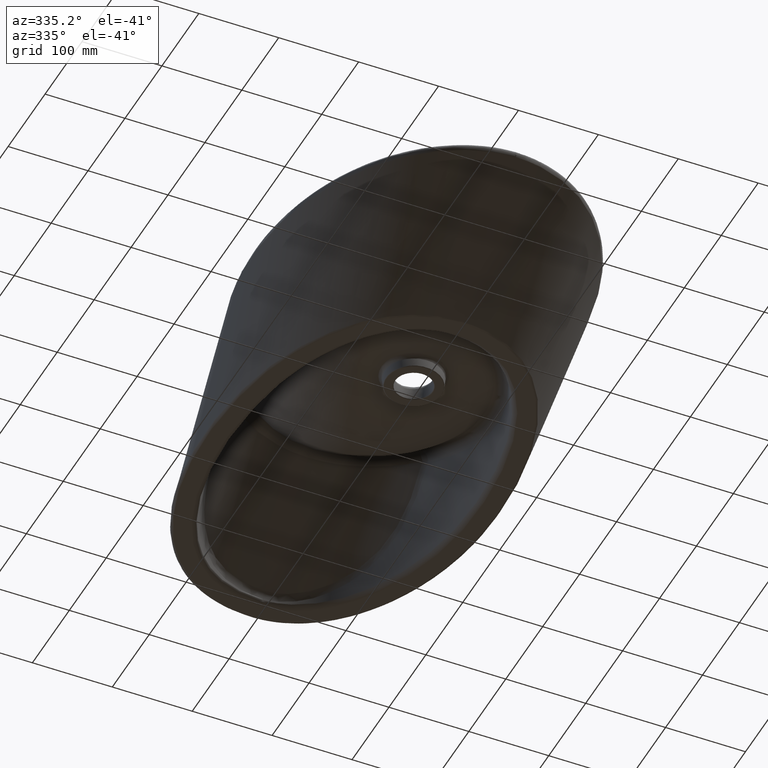
[diagram: clean part render]
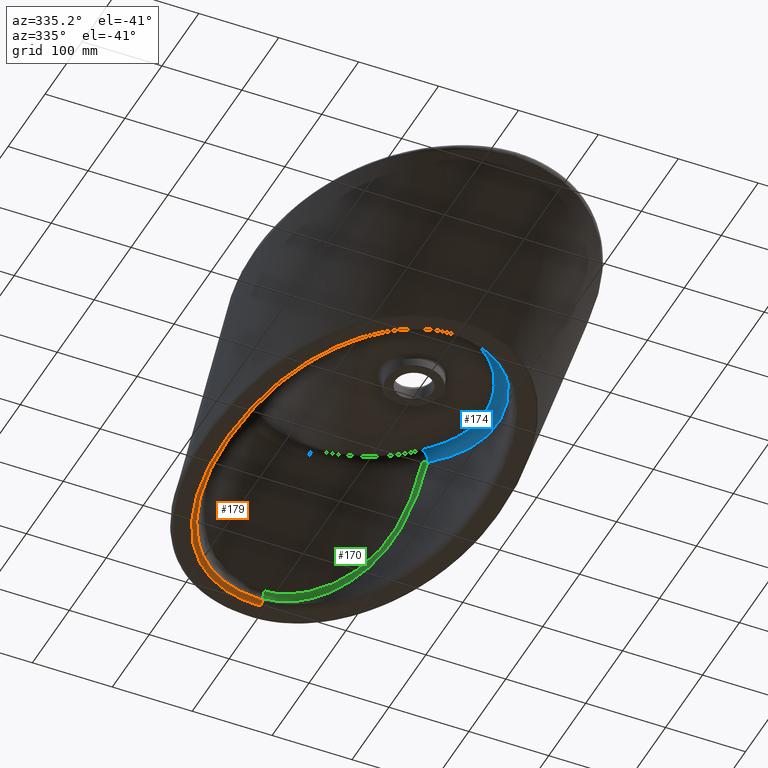
[diagram: same view with three faces highlighted in distinct colors, each labeled with its STEP entity id]
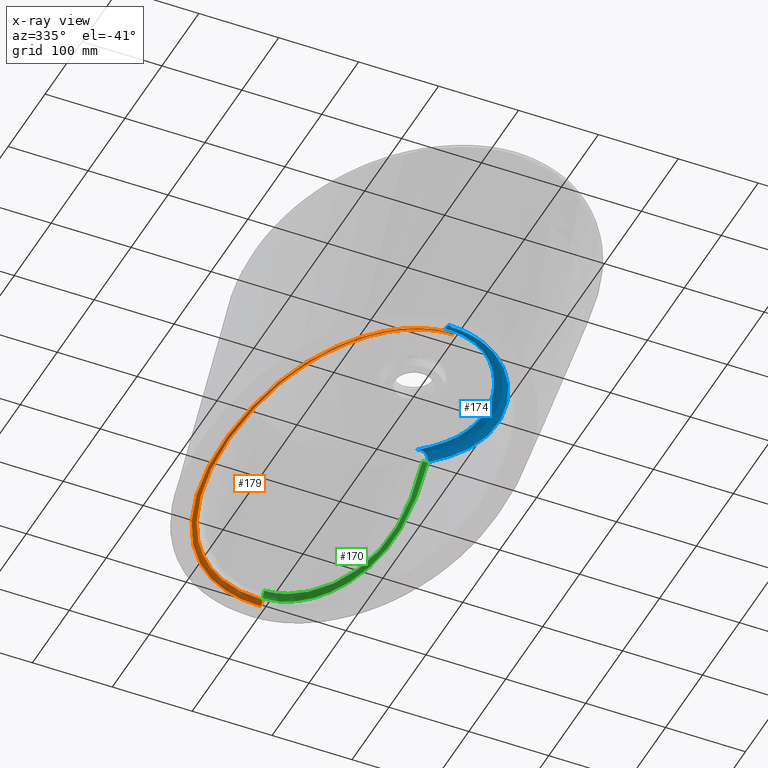
[diagram: x-ray of the same camera — body ghosted, the three highlighted faces saturated]
A machine part, auxiliary view with three faces highlighted in distinct colors.
The next image is the same camera in x-ray (body ghosted, the three faces saturated) — at least one of them is partly hidden behind the body in this view.
Their STEP definitions:

[orange] entity #179 — the highlighted face is a freeform B-spline surface patch.
#107=CIRCLE('',#541,6.);
#147=FACE_OUTER_BOUND('',#260,.T.);
#179=ADVANCED_FACE('',(#147),#195,.T.);
#195=(
BOUNDED_SURFACE()
B_SPLINE_SURFACE(3,2,((#16639,#16640,#16641),(#16642,#16643,#16644),(#16645,
#16646,#16647),(#16648,#16649,#16650),(#16651,#16652,#16653),(#16654,#16655,
#16656),(#16657,#16658,#16659),(#16660,#16661,#16662),(#16663,#16664,#16665),
(#16666,#16667,#16668),(#16669,#16670,#16671),(#16672,#16673,#16674),(#16675,
#16676,#16677),(#16678,#16679,#16680),(#16681,#16682,#16683),(#16684,#16685,
#16686),(#16687,#16688,#16689),(#16690,#16691,#16692),(#16693,#16694,#16695),
(#16696,#16697,#16698),(#16699,#16700,#16701),(#16702,#16703,#16704),(#16705,
#16706,#16707),(#16708,#16709,#16710),(#16711,#16712,#16713),(#16714,#16715,
#16716),(#16717,#16718,#16719),(#16720,#16721,#16722),(#16723,#16724,#16725),
(#16726,#16727,#16728),(#16729,#16730,#16731),(#16732,#16733,#16734),(#16735,
#16736,#16737),(#16738,#16739,#16740),(#16741,#16742,#16743),(#16744,#16745,
#16746),(#16747,#16748,#16749),(#16750,#16751,#16752),(#16753,#16754,#16755),
(#16756,#16757,#16758),(#16759,#16760,#16761),(#16762,#16763,#16764),(#16765,
#16766,#16767),(#16768,#16769,#16770),(#16771,#16772,#16773),(#16774,#16775,
#16776),(#16777,#16778,#16779),(#16780,#16781,#16782),(#16783,#16784,#16785),
(#16786,#16787,#16788),(#16789,#16790,#16791),(#16792,#16793,#16794),(#16795,
#16796,#16797),(#16798,#16799,#16800),(#16801,#16802,#16803),(#16804,#16805,
#16806),(#16807,#16808,#16809),(#16810,#16811,#16812),(#16813,#16814,#16815),
(#16816,#16817,#16818),(#16819,#16820,#16821),(#16822,#16823,#16824),(#16825,
#16826,#16827),(#16828,#16829,#16830),(#16831,#16832,#16833),(#16834,#16835,
#16836),(#16837,#16838,#16839),(#16840,#16841,#16842)),.UNSPECIFIED.,.F.,
 .F.,.F.)
B_SPLINE_SURFACE_WITH_KNOTS((4,2,2,2,2,2,2,2,2,2,2,2,2,2,2,2,2,2,2,2,2,
2,2,2,2,2,2,2,2,2,2,2,2,4),(3,3),(0.,0.0078125,0.015625,0.03125,0.0625,
0.078125,0.09375,0.125,0.15625,0.1875,0.21875,0.25,0.3125,0.34375,0.375,
0.5,0.53125,0.5625,0.625,0.6875,0.71875,0.75,0.8125,0.84375,0.875,0.890625,
0.90625,0.9375,0.96875,0.984375,0.9921875,0.994140625,0.99609375,1.),(0.,
1.),.UNSPECIFIED.)
GEOMETRIC_REPRESENTATION_ITEM()
RATIONAL_B_SPLINE_SURFACE(((1.,0.777145961457343,1.),(1.,0.777145961457343,
1.),(1.,0.777145894841491,1.),(1.,0.777146111701577,1.),(1.,0.777146385601672,
1.),(1.,0.777146934076518,1.),(1.,0.777146716311051,1.),(1.,0.777145413162948,
1.),(1.,0.777145952263475,1.),(1.,0.777146012528561,1.),(1.,0.777146112090303,
1.),(1.,0.777146574209231,1.),(1.,0.777146440333908,1.),(1.,0.777145632563143,
1.),(1.,0.777145959066396,1.),(1.,0.777146036682903,1.),(1.,0.777144581739542,
1.),(1.,0.777146555267541,1.),(1.,0.777146630314973,1.),(1.,0.777145667099669,
1.),(1.,0.777145737611116,1.),(1.,0.777146068983631,1.),(1.,0.777146236887803,
1.),(1.,0.777145610323198,1.),(1.,0.777147121608124,1.),(1.,0.777145558866513,
1.),(1.,0.777146232304786,1.),(1.,0.777145780787811,1.),(1.,0.777145963535052,
1.),(1.,0.777145963535052,1.),(1.,0.777145961611422,1.),(1.,0.777145961611422,
1.),(1.,0.777145961489382,1.),(1.,0.777145961489382,1.),(1.,0.777145995315832,
1.),(1.,0.77714589859841,1.),(1.,0.777145909223689,1.),(1.,0.777146007809503,
1.),(1.,0.777145467914688,1.),(1.,0.777146277403923,1.),(1.,0.777147232305018,
1.),(1.,0.777146873506432,1.),(1.,0.777146005404418,1.),(1.,0.777145902142893,
1.),(1.,0.777145706829065,1.),(1.,0.777146173244458,1.),(1.,0.777145131785103,
1.),(1.,0.777147950179965,1.),(1.,0.777145606157323,1.),(1.,0.777146535362058,
1.),(1.,0.777146670910301,1.),(1.,0.777146097909894,1.),(1.,0.777145866731576,
1.),(1.,0.777148232934267,1.),(1.,0.777145969435135,1.),(1.,0.777146113605817,
1.),(1.,0.777144794508033,1.),(1.,0.777147734020834,1.),(1.,0.777148303841703,
1.),(1.,0.777147026507009,1.),(1.,0.777146348209862,1.),(1.,0.777145999944987,
1.),(1.,0.77714596145697,1.),(1.,0.77714596145697,1.),(1.,0.777145961456956,
1.),(1.,0.777145961456956,1.),(1.,0.777145961456928,1.),(1.,0.777145961456928,
1.)))
REPRESENTATION_ITEM('')
SURFACE()
);
#260=EDGE_LOOP('',(#374,#375,#376,#377));
#374=ORIENTED_EDGE('',*,*,#480,.T.);
#375=ORIENTED_EDGE('',*,*,#460,.T.);
#376=ORIENTED_EDGE('',*,*,#481,.T.);
#377=ORIENTED_EDGE('',*,*,#431,.T.);
#386=VERTEX_POINT('',#807);
#390=VERTEX_POINT('',#869);
#414=VERTEX_POINT('',#14881);
#415=VERTEX_POINT('',#14882);
#431=EDGE_CURVE('',#390,#386,#491,.T.);
#460=EDGE_CURVE('',#414,#415,#518,.T.);
#480=EDGE_CURVE('',#386,#414,#534,.T.);
#481=EDGE_CURVE('',#415,#390,#107,.T.);
#491=B_SPLINE_CURVE_WITH_KNOTS('',3,(#1293,#1294,#1295,#1296,#1297,#1298,
#1299,#1300,#1301,#1302,#1303,#1304,#1305,#1306,#1307,#1308,#1309,#1310,
#1311,#1312,#1313,#1314,#1315,#1316,#1317,#1318,#1319,#1320,#1321,#1322,
#1323,#1324,#1325,#1326,#1327,#1328,#1329,#1330,#1331,#1332,#1333,#1334,
#1335,#1336,#1337,#1338),.UNSPECIFIED.,.F.,.F.,(4,2,2,2,2,2,2,2,2,2,2,2,
2,2,2,2,2,2,2,2,2,2,4),(0.,0.0625000000000002,0.0937500000000003,0.125,
0.156250000000001,0.187500000000001,0.218750000000001,0.250000000000001,
0.312500000000001,0.375000000000001,0.500000000000001,0.562500000000001,
0.625000000000001,0.687500000000001,0.718750000000001,0.750000000000001,
0.8125,0.84375,0.875,0.90625,0.9375,0.96875,1.),.UNSPECIFIED.);
#518=B_SPLINE_CURVE_WITH_KNOTS('',3,(#14837,#14838,#14839,#14840,#14841,
#14842,#14843,#14844,#14845,#14846,#14847,#14848,#14849,#14850,#14851,#14852,
#14853,#14854,#14855,#14856,#14857,#14858,#14859,#14860,#14861,#14862,#14863,
#14864,#14865,#14866,#14867,#14868,#14869,#14870,#14871,#14872,#14873,#14874,
#14875,#14876,#14877,#14878,#14879,#14880),.UNSPECIFIED.,.F.,.F.,(4,2,2,
2,2,2,2,2,2,2,2,2,2,2,2,2,2,2,2,2,2,4),(0.,0.03125,0.0625,0.125,0.15625,
0.1875,0.25,0.28125,0.3125,0.375,0.4375,0.5,0.625,0.6875,0.75,0.78125,0.8125,
0.84375,0.875,0.90625,0.9375,1.),.UNSPECIFIED.);
#534=B_SPLINE_CURVE_WITH_KNOTS('',3,(#16632,#16633,#16634,#16635,#16636,
#16637),.UNSPECIFIED.,.F.,.F.,(4,2,4),(0.,0.5,1.),.UNSPECIFIED.);
#541=AXIS2_PLACEMENT_3D('',#16638,#554,#555);
#554=DIRECTION('',(-0.999999832664966,-0.000578506732803887,0.));
#555=DIRECTION('',(0.000578506732803887,-0.999999832664966,0.));
#807=CARTESIAN_POINT('',(1.23580130023827,-99.4889963976569,-138.247470059736));
#869=CARTESIAN_POINT('',(-0.0164929942579505,409.62749299604,-138.247470144907));
#1293=CARTESIAN_POINT('',(-0.016492994257951,409.62749299604,-138.247470144907));
#1294=CARTESIAN_POINT('',(-13.8209357576785,409.619465952716,-138.247470144897));
#1295=CARTESIAN_POINT('',(-27.3282143069798,407.780231175651,-138.247468801868));
#1296=CARTESIAN_POINT('',(-46.9867003536047,401.309028473631,-138.247470826433));
#1297=CARTESIAN_POINT('',(-53.3181719710056,398.586914000047,-138.247475748186));
#1298=CARTESIAN_POINT('',(-65.3020927871157,392.132099991245,-138.247464329982));
#1299=CARTESIAN_POINT('',(-70.9878784017383,388.374678698159,-138.247472528766));
#1300=CARTESIAN_POINT('',(-81.7880413469381,379.870680369239,-138.247467666765));
#1301=CARTESIAN_POINT('',(-86.856193536216,375.145286663845,-138.247468302209));
#1302=CARTESIAN_POINT('',(-96.1554801050963,365.156412075577,-138.247472104836));
#1303=CARTESIAN_POINT('',(-100.437148202487,359.856673327183,-138.247470755579));
#1304=CARTESIAN_POINT('',(-108.369594722228,348.733759625872,-138.247469496704));
#1305=CARTESIAN_POINT('',(-112.034814996936,342.874727928684,-138.247469166646));
#1306=CARTESIAN_POINT('',(-118.721896710328,330.900366829283,-138.247471201767));
#1307=CARTESIAN_POINT('',(-121.748685672006,324.789470560805,-138.247468009482));
#1308=CARTESIAN_POINT('',(-130.020950397758,306.141156368269,-138.2474746669));
#1309=CARTESIAN_POINT('',(-134.465323585499,293.290846926894,-138.247468389739));
#1310=CARTESIAN_POINT('',(-141.698106791919,266.9434484133,-138.247471947164));
#1311=CARTESIAN_POINT('',(-144.478674055951,253.475804083013,-138.24746848183));
#1312=CARTESIAN_POINT('',(-150.665209260459,213.197386619158,-138.247473535069));
#1313=CARTESIAN_POINT('',(-152.063737523604,186.17203442822,-138.247470443275));
#1314=CARTESIAN_POINT('',(-150.971367547294,145.431449826645,-138.247469998696));
#1315=CARTESIAN_POINT('',(-150.063406246365,131.770696271251,-138.24747106727));
#1316=CARTESIAN_POINT('',(-147.28082174214,104.649042471621,-138.247469253712));
#1317=CARTESIAN_POINT('',(-145.447783171049,91.1861294853748,-138.247466848525));
#1318=CARTESIAN_POINT('',(-140.489155853376,64.546799722875,-138.247473269695));
#1319=CARTESIAN_POINT('',(-137.336098360078,51.3764714466854,-138.24746946171));
#1320=CARTESIAN_POINT('',(-131.36937899575,31.8951919473909,-138.247470448241));
#1321=CARTESIAN_POINT('',(-129.174880437173,25.4470019959599,-138.247489121069));
#1322=CARTESIAN_POINT('',(-124.334589484713,12.6506522318534,-138.247492700718));
#1323=CARTESIAN_POINT('',(-121.679751944174,6.28612893228365,-138.247472931278));
#1324=CARTESIAN_POINT('',(-113.081537591535,-12.3884833866324,-138.247465142134));
#1325=CARTESIAN_POINT('',(-106.506657318735,-24.3604052117635,-138.247473194251));
#1326=CARTESIAN_POINT('',(-95.015466396321,-41.3947422748332,-138.247468779152));
#1327=CARTESIAN_POINT('',(-90.8829241934248,-46.9404283502189,-138.247471313365));
#1328=CARTESIAN_POINT('',(-82.0949899816655,-57.4701622971418,-138.247469110231));
#1329=CARTESIAN_POINT('',(-77.4404590902053,-62.4670038608725,-138.247480348636));
#1330=CARTESIAN_POINT('',(-67.5222267679243,-71.8340719618246,-138.247461085929));
#1331=CARTESIAN_POINT('',(-62.2581437096117,-76.2039059430969,-138.247474349656));
#1332=CARTESIAN_POINT('',(-50.9544003808254,-84.145786908476,-138.247466353077));
#1333=CARTESIAN_POINT('',(-45.0195288807738,-87.6408169070309,-138.247478420874));
#1334=CARTESIAN_POINT('',(-32.6200109060234,-93.4356111133767,-138.247462501101));
#1335=CARTESIAN_POINT('',(-26.0643406430562,-95.760901486685,-138.247462716586));
#1336=CARTESIAN_POINT('',(-12.6048490177058,-98.8322109535042,-138.247477245337));
#1337=CARTESIAN_POINT('',(-5.7058934673854,-99.6024197872392,-138.247470144908));
#1338=CARTESIAN_POINT('',(1.23605128070102,-99.4889923272165,-138.247470144907));
#14837=CARTESIAN_POINT('',(1.31032221685159,-105.357445368759,-143.));
#14838=CARTESIAN_POINT('',(-5.82929421682634,-105.472429726494,-143.));
#14839=CARTESIAN_POINT('',(-12.8498424779225,-104.72408847663,-143.));
#14840=CARTESIAN_POINT('',(-26.6807472903352,-101.703372462127,-143.));
#14841=CARTESIAN_POINT('',(-33.469440214113,-99.3967144531361,-143.));
#14842=CARTESIAN_POINT('',(-52.7194506947448,-90.7247983846527,-143.));
#14843=CARTESIAN_POINT('',(-64.5166955507686,-82.4539143808848,-143.));
#14844=CARTESIAN_POINT('',(-80.019092702438,-68.2173108527208,-143.));
#14845=CARTESIAN_POINT('',(-84.8694189730824,-63.1452775402753,-143.));
#14846=CARTESIAN_POINT('',(-94.0287877992869,-52.4439529426025,-143.));
#14847=CARTESIAN_POINT('',(-98.3478425655635,-46.789952310325,-143.));
#14848=CARTESIAN_POINT('',(-110.36384901073,-29.3860903244613,-143.));
#14849=CARTESIAN_POINT('',(-117.229935664947,-17.1342481309239,-143.));
#14850=CARTESIAN_POINT('',(-126.212861158059,1.99013455511651,-143.));
#14851=CARTESIAN_POINT('',(-128.989095144577,8.51525910216894,-143.));
#14852=CARTESIAN_POINT('',(-134.057068473688,21.6547336338296,-143.));
#14853=CARTESIAN_POINT('',(-136.354458066542,28.2769849246769,-143.));
#14854=CARTESIAN_POINT('',(-142.60189933334,48.2868396244533,-143.));
#14855=CARTESIAN_POINT('',(-145.902301332331,61.8186363618855,-143.));
#14856=CARTESIAN_POINT('',(-151.091301202853,89.1955875496548,-143.));
#14857=CARTESIAN_POINT('',(-152.999059726143,103.036489187654,-143.));
#14858=CARTESIAN_POINT('',(-155.891452818413,130.923184916806,-143.));
#14859=CARTESIAN_POINT('',(-156.832430397634,144.974321292101,-143.));
#14860=CARTESIAN_POINT('',(-157.948876858209,186.873783606152,-143.));
#14861=CARTESIAN_POINT('',(-156.47070642079,214.665291714003,-143.));
#14862=CARTESIAN_POINT('',(-149.966369997072,256.079668308967,-143.));
#14863=CARTESIAN_POINT('',(-147.043203217541,269.929226486016,-143.));
#14864=CARTESIAN_POINT('',(-139.452822731302,296.96545619964,-143.));
#14865=CARTESIAN_POINT('',(-134.788768340141,310.143902003878,-143.));
#14866=CARTESIAN_POINT('',(-126.111881765514,329.254485895439,-143.));
#14867=CARTESIAN_POINT('',(-122.93762623401,335.514452605367,-143.));
#14868=CARTESIAN_POINT('',(-115.924548311605,347.774583850151,-143.));
#14869=CARTESIAN_POINT('',(-112.09414130995,353.742682113122,-143.));
#14870=CARTESIAN_POINT('',(-103.806996500544,365.071927275471,-143.));
#14871=CARTESIAN_POINT('',(-99.3373689073619,370.465809566338,-143.));
#14872=CARTESIAN_POINT('',(-89.6368562803918,380.621463181128,-143.));
#14873=CARTESIAN_POINT('',(-84.3486443320847,385.422290163584,-143.));
#14874=CARTESIAN_POINT('',(-73.1564212977735,394.013944949164,-143.));
#14875=CARTESIAN_POINT('',(-67.2703210088759,397.80765046248,-143.));
#14876=CARTESIAN_POINT('',(-54.8821337764323,404.328467169255,-143.));
#14877=CARTESIAN_POINT('',(-48.3375055367311,407.083668370505,-143.));
#14878=CARTESIAN_POINT('',(-28.1059056192448,413.615259884577,-143.));
#14879=CARTESIAN_POINT('',(-14.2145404228572,415.488123686502,-143.));
#14880=CARTESIAN_POINT('',(-0.0198881840942047,415.496377618399,-143.));
#14881=CARTESIAN_POINT('',(1.31032193041453,-105.357427583289,-143.));
#14882=CARTESIAN_POINT('',(-0.0198881840941689,415.496377618399,-143.));
#16632=CARTESIAN_POINT('',(1.22566068244859,-99.4891615814782,-138.247470145039));
#16633=CARTESIAN_POINT('',(1.230252732849,-99.7721650931373,-139.579072249177));
#16634=CARTESIAN_POINT('',(1.24245224601221,-100.524008989583,-140.80613556535));
#16635=CARTESIAN_POINT('',(1.27678109824456,-102.63966210439,-142.519593583758));
#16636=CARTESIAN_POINT('',(1.29879030126014,-103.996067456924,-142.999991928093));
#16637=CARTESIAN_POINT('',(1.32087684378106,-105.357239166466,-142.999999999895));
#16638=CARTESIAN_POINT('',(-0.0198881840941689,415.496377618399,-137.));
#16639=CARTESIAN_POINT('',(4.07171623778371,409.629870215294,-138.247470144914));
#16640=CARTESIAN_POINT('',(4.07112883578374,410.64005144975,-143.));
#16641=CARTESIAN_POINT('',(4.0683035882103,415.498754827499,-143.));
#16642=CARTESIAN_POINT('',(2.27632008151303,409.628826225061,-138.247470144683));
#16643=CARTESIAN_POINT('',(2.27583103928106,410.639007516765,-142.999999999851));
#16644=CARTESIAN_POINT('',(2.27347892309724,415.497711169433,-143.));
#16645=CARTESIAN_POINT('',(0.460351106387454,409.636696914278,-138.247468902429));
#16646=CARTESIAN_POINT('',(0.462947372137888,410.64693803401,-143.000000000025));
#16647=CARTESIAN_POINT('',(0.47543323518908,415.505934271439,-143.));
#16648=CARTESIAN_POINT('',(-2.99433826401208,409.606737661162,-138.247472947193));
#16649=CARTESIAN_POINT('',(-3.0144545927229,410.616784374408,-142.999999999975));
#16650=CARTESIAN_POINT('',(-3.11121007039311,415.474829814095,-143.));
#16651=CARTESIAN_POINT('',(-4.71539075713197,409.562692740717,-138.247478055824));
#16652=CARTESIAN_POINT('',(-4.74710116855043,410.572450942515,-142.999999999975));
#16653=CARTESIAN_POINT('',(-4.89962137145179,415.429088738022,-143.));
#16654=CARTESIAN_POINT('',(-9.85894266977401,409.340716046567,-138.247488285773));
#16655=CARTESIAN_POINT('',(-9.92618708356562,410.348947206844,-143.00000000005));
#16656=CARTESIAN_POINT('',(-10.2496202076312,415.198200293832,-143.));
#16657=CARTESIAN_POINT('',(-13.2618438574117,409.073087690339,-138.247484224006));
#16658=CARTESIAN_POINT('',(-13.3537883326793,410.079419627881,-142.999999999951));
#16659=CARTESIAN_POINT('',(-13.7959999947383,414.919555673588,-143.));
#16660=CARTESIAN_POINT('',(-23.3859839696213,407.88525053715,-138.24745991853));
#16661=CARTESIAN_POINT('',(-23.5552492136255,408.882495173155,-143.000000000098));
#16662=CARTESIAN_POINT('',(-24.3693293545528,413.679021829857,-143.));
#16663=CARTESIAN_POINT('',(-30.0119040831487,406.57606370448,-138.247471472674));
#16664=CARTESIAN_POINT('',(-30.2386555758102,407.562185843406,-143.000000000496));
#16665=CARTESIAN_POINT('',(-31.3292706752761,412.305165786832,-143.));
#16666=CARTESIAN_POINT('',(-39.8126475490175,403.720171448284,-138.247470347849));
#16667=CARTESIAN_POINT('',(-40.123184247772,404.681878217594,-142.999999999752));
#16668=CARTESIAN_POINT('',(-41.6167834842285,409.307431409761,-143.));
#16669=CARTESIAN_POINT('',(-43.0724410035622,402.61528849009,-138.247472954362));
#16670=CARTESIAN_POINT('',(-43.4108550778705,403.567551675129,-142.999999999901));
#16671=CARTESIAN_POINT('',(-45.03853920137,408.147671978881,-143.));
#16672=CARTESIAN_POINT('',(-49.431584479788,400.145397156414,-138.247481573744));
#16673=CARTESIAN_POINT('',(-49.8246453836328,401.076441356668,-143.000000000099));
#16674=CARTESIAN_POINT('',(-51.7151525858193,405.554473269007,-143.));
#16675=CARTESIAN_POINT('',(-52.5354817210601,398.780976912146,-138.24747907687));
#16676=CARTESIAN_POINT('',(-52.9553504756161,399.700244726227,-143.000000000148));
#16677=CARTESIAN_POINT('',(-54.9747865250576,404.121650327269,-143.));
#16678=CARTESIAN_POINT('',(-61.6220826684718,394.306654450648,-138.247464010167));
#16679=CARTESIAN_POINT('',(-62.1211182095653,395.186929228201,-142.999999999705));
#16680=CARTESIAN_POINT('',(-64.5213317497493,399.420850996835,-143.));
#16681=CARTESIAN_POINT('',(-67.3717217587785,390.810879540507,-138.247471547996));
#16682=CARTESIAN_POINT('',(-67.9223853757488,391.659642501842,-143.));
#16683=CARTESIAN_POINT('',(-70.5709295853769,395.741961196614,-143.));
#16684=CARTESIAN_POINT('',(-78.3405787340097,382.794560839112,-138.247470100306));
#16685=CARTESIAN_POINT('',(-78.9820222796545,383.576978394439,-143.));
#16686=CARTESIAN_POINT('',(-82.0671969192987,387.340198036312,-143.));
#16687=CARTESIAN_POINT('',(-83.5717200034728,378.250772896783,-138.247444410942));
#16688=CARTESIAN_POINT('',(-84.2540484660275,378.997301180683,-142.999999999803));
#16689=CARTESIAN_POINT('',(-87.5359730195989,382.587939460697,-143.));
#16690=CARTESIAN_POINT('',(-93.192313325111,368.553099593878,-138.24748122053));
#16691=CARTESIAN_POINT('',(-93.9442677746377,369.229477095053,-143.000000000198));
#16692=CARTESIAN_POINT('',(-97.5609750170148,372.482605792456,-143.));
#16693=CARTESIAN_POINT('',(-97.6350573759262,363.368447760033,-138.247482619621));
#16694=CARTESIAN_POINT('',(-98.4162220042538,364.010347463887,-142.999999999507));
#16695=CARTESIAN_POINT('',(-102.173362947736,367.09770462299,-143.));
#16696=CARTESIAN_POINT('',(-105.88791214634,352.426554175657,-138.247464655193));
#16697=CARTESIAN_POINT('',(-106.719754497973,353.001244894916,-143.000000000492));
#16698=CARTESIAN_POINT('',(-110.720697008481,355.765387731943,-143.));
#16699=CARTESIAN_POINT('',(-109.704441601537,346.64919822186,-138.247465969599));
#16700=CARTESIAN_POINT('',(-110.557797218438,347.190951605968,-142.999999999801));
#16701=CARTESIAN_POINT('',(-114.662229369545,349.796642354584,-143.));
#16702=CARTESIAN_POINT('',(-116.74288978149,334.654296179409,-138.247472150687));
#16703=CARTESIAN_POINT('',(-117.632053565644,335.135033121202,-143.000000000199));
#16704=CARTESIAN_POINT('',(-121.908692874465,337.447238553924,-143.));
#16705=CARTESIAN_POINT('',(-119.933202143601,328.50704063776,-138.24747528187));
#16706=CARTESIAN_POINT('',(-120.836850648548,328.959581414141,-142.999999999803));
#16707=CARTESIAN_POINT('',(-125.183137249101,331.136183602483,-143.));
#16708=CARTESIAN_POINT('',(-128.660261014298,309.705900124778,-138.247463596206));
#16709=CARTESIAN_POINT('',(-129.601815511536,310.07676055579,-143.000000000393));
#16710=CARTESIAN_POINT('',(-134.130447282162,311.860551016678,-143.));
#16711=CARTESIAN_POINT('',(-133.362408664113,296.685955621174,-138.247491784485));
#16712=CARTESIAN_POINT('',(-134.321088539262,297.007708672232,-143.000000000986));
#16713=CARTESIAN_POINT('',(-138.931973197541,298.555336534561,-143.));
#16714=CARTESIAN_POINT('',(-139.109526249996,276.586108539999,-138.247462635482));
#16715=CARTESIAN_POINT('',(-140.087080053125,276.841785189737,-142.999999999507));
#16716=CARTESIAN_POINT('',(-144.788874734729,278.071556357903,-143.));
#16717=CARTESIAN_POINT('',(-140.811371015065,269.769553775729,-138.247475196818));
#16718=CARTESIAN_POINT('',(-141.794059617614,270.004491133597,-143.000000000198));
#16719=CARTESIAN_POINT('',(-146.520509001945,271.134484739813,-143.));
#16720=CARTESIAN_POINT('',(-143.799376217896,256.079262855834,-138.247466774962));
#16721=CARTESIAN_POINT('',(-144.790584768253,256.275138941705,-142.999999999802));
#16722=CARTESIAN_POINT('',(-149.558044855645,257.217265326255,-143.));
#16723=CARTESIAN_POINT('',(-145.084465520357,249.216117598752,-138.247470428917));
#16724=CARTESIAN_POINT('',(-146.079164723015,249.393226212254,-143.));
#16725=CARTESIAN_POINT('',(-150.863402549535,250.245071416093,-143.));
#16726=CARTESIAN_POINT('',(-150.576486560686,214.813380114975,-138.247469202663));
#16727=CARTESIAN_POINT('',(-151.585441228635,214.901185709995,-143.));
#16728=CARTESIAN_POINT('',(-156.438248766765,215.323507886123,-143.));
#16729=CARTESIAN_POINT('',(-152.082800789511,187.035502259994,-138.247470514723));
#16730=CARTESIAN_POINT('',(-153.094092538252,187.063664575581,-143.000000001177));
#16731=CARTESIAN_POINT('',(-157.958135759768,187.199117868248,-143.));
#16732=CARTESIAN_POINT('',(-151.151163616578,152.099182327233,-138.247470056053));
#16733=CARTESIAN_POINT('',(-152.160618706203,152.05848093313,-142.999999999706));
#16734=CARTESIAN_POINT('',(-157.015829864969,151.862718031367,-143.));
#16735=CARTESIAN_POINT('',(-150.821536645328,145.101039094064,-138.247470049413));
#16736=CARTESIAN_POINT('',(-151.830346343493,145.04684981764,-143.000000000394));
#16737=CARTESIAN_POINT('',(-156.682453368912,144.786213768907,-143.));
#16738=CARTESIAN_POINT('',(-149.888322880727,131.080320714068,-138.247470241609));
#16739=CARTESIAN_POINT('',(-150.895415519241,131.000332280032,-142.999999999606));
#16740=CARTESIAN_POINT('',(-155.739263193494,130.615609186785,-143.));
#16741=CARTESIAN_POINT('',(-149.285193173336,124.057565170711,-138.247469574176));
#16742=CARTESIAN_POINT('',(-150.291206041467,123.965022630223,-143.000000000394));
#16743=CARTESIAN_POINT('',(-155.129863073648,123.519919047365,-143.));
#16744=CARTESIAN_POINT('',(-147.093669983874,103.114576370647,-138.247471376999));
#16745=CARTESIAN_POINT('',(-148.095731108702,102.984258558041,-142.999999999213));
#16746=CARTESIAN_POINT('',(-152.915374845358,102.357471744001,-143.));
#16747=CARTESIAN_POINT('',(-145.164372593369,89.2579748170949,-138.24747100985));
#16748=CARTESIAN_POINT('',(-146.163136174134,89.1023730328557,-143.000000000391));
#16749=CARTESIAN_POINT('',(-150.96691939727,88.3539653901105,-143.));
#16750=CARTESIAN_POINT('',(-139.921211658655,61.9742521039995,-138.247469170279));
#16751=CARTESIAN_POINT('',(-140.906507652807,61.7485755015123,-142.999999999609));
#16752=CARTESIAN_POINT('',(-145.645522391627,60.6631252322,-143.));
#16753=CARTESIAN_POINT('',(-136.588056087726,48.5149827995492,-138.247460938845));
#16754=CARTESIAN_POINT('',(-137.563980438823,48.2506202931741,-142.999999999215));
#16755=CARTESIAN_POINT('',(-142.257934429585,46.9790422776193,-143.));
#16756=CARTESIAN_POINT('',(-130.283702562806,28.6438100359078,-138.24747603817));
#16757=CARTESIAN_POINT('',(-131.240068795859,28.3177691952893,-143.000000000393));
#16758=CARTESIAN_POINT('',(-135.839910206015,26.7495929726004,-143.));
#16759=CARTESIAN_POINT('',(-127.966032331523,22.0727142021859,-138.247493848288));
#16760=CARTESIAN_POINT('',(-128.914977099377,21.725512777279,-143.000000000099));
#16761=CARTESIAN_POINT('',(-133.479066166823,20.0556069350579,-143.));
#16762=CARTESIAN_POINT('',(-122.854743232896,9.04653831981228,-138.247487155873));
#16763=CARTESIAN_POINT('',(-123.786578491878,8.65574472509664,-142.999999999901));
#16764=CARTESIAN_POINT('',(-128.268400974211,6.77616602682391,-143.));
#16765=CARTESIAN_POINT('',(-120.060090459871,2.59437316040909,-138.247469680559));
#16766=CARTESIAN_POINT('',(-120.982290624064,2.18126437756244,-143.));
#16767=CARTESIAN_POINT('',(-125.417830828537,0.194321705378024,-143.));
#16768=CARTESIAN_POINT('',(-111.026260524839,-16.2844428306609,-138.247471606677));
#16769=CARTESIAN_POINT('',(-111.915544979949,-16.7663413896483,-143.));
#16770=CARTESIAN_POINT('',(-116.192764955108,-19.0841364497345,-143.));
#16771=CARTESIAN_POINT('',(-104.127178113625,-28.3498272789363,-138.247465396194));
#16772=CARTESIAN_POINT('',(-104.990164770197,-28.8791141598813,-143.000000000397));
#16773=CARTESIAN_POINT('',(-109.140897519006,-31.4248808510197,-143.));
#16774=CARTESIAN_POINT('',(-92.0831177323918,-45.3657272112291,-138.247474094821));
#16775=CARTESIAN_POINT('',(-92.8884306781388,-45.9765052850488,-142.999999999802));
#16776=CARTESIAN_POINT('',(-96.7617548435091,-48.9141831893049,-143.));
#16777=CARTESIAN_POINT('',(-87.7683038950248,-50.8592530104879,-138.247454671047));
#16778=CARTESIAN_POINT('',(-88.5513722172765,-51.4985740693656,-143.00000000079));
#16779=CARTESIAN_POINT('',(-92.3177186476393,-54.5736343756294,-143.));
#16780=CARTESIAN_POINT('',(-78.6465586030141,-61.2019357754513,-138.24750723682));
#16781=CARTESIAN_POINT('',(-79.3787623074959,-61.8989799123844,-142.99999999921));
#16782=CARTESIAN_POINT('',(-82.9003120063765,-65.2515350578828,-143.));
#16783=CARTESIAN_POINT('',(-73.8239391027386,-66.0793699275667,-138.247463517845));
#16784=CARTESIAN_POINT('',(-74.5272647133062,-66.8059476485642,-142.999999999803));
#16785=CARTESIAN_POINT('',(-77.9100665975508,-70.3006344964315,-143.));
#16786=CARTESIAN_POINT('',(-66.1369747977882,-72.8697428078368,-138.247480849195));
#16787=CARTESIAN_POINT('',(-66.7884987866113,-73.642094741398,-143.000000000099));
#16788=CARTESIAN_POINT('',(-69.9221228456677,-77.3568761030924,-143.));
#16789=CARTESIAN_POINT('',(-63.4981715057153,-75.0450112743953,-138.247483377499));
#16790=CARTESIAN_POINT('',(-64.1310290696568,-75.8328095528593,-143.000000000198));
#16791=CARTESIAN_POINT('',(-67.1748798390752,-79.6218649958125,-143.));
#16792=CARTESIAN_POINT('',(-58.0497978510741,-79.1998381501889,-138.247472689742));
#16793=CARTESIAN_POINT('',(-58.6420594208911,-80.0185856697318,-142.999999999802));
#16794=CARTESIAN_POINT('',(-61.4906807191523,-83.9565308989913,-143.));
#16795=CARTESIAN_POINT('',(-55.2271495107551,-81.1872922895278,-138.247468378114));
#16796=CARTESIAN_POINT('',(-55.797382189249,-82.0216083411924,-143.));
#16797=CARTESIAN_POINT('',(-58.5400353233336,-86.0344644654696,-143.));
#16798=CARTESIAN_POINT('',(-46.5908669949511,-86.7452190625077,-138.247512511434));
#16799=CARTESIAN_POINT('',(-47.0904791098815,-87.6250165364413,-143.));
#16800=CARTESIAN_POINT('',(-49.4933252571551,-91.8565124440211,-143.));
#16801=CARTESIAN_POINT('',(-40.6094793474508,-89.9242841544253,-138.247470293431));
#16802=CARTESIAN_POINT('',(-41.0559481770943,-90.83290778746,-142.999999999703));
#16803=CARTESIAN_POINT('',(-43.2033406702603,-95.2031470895018,-143.));
#16804=CARTESIAN_POINT('',(-28.1370028436667,-95.0609283105118,-138.247472982991));
#16805=CARTESIAN_POINT('',(-28.4599062033992,-96.0204427797163,-143.000000000297));
#16806=CARTESIAN_POINT('',(-30.0129783357737,-100.635443508323,-143.));
#16807=CARTESIAN_POINT('',(-21.5810033369639,-97.0117279670187,-138.247448379554));
#16808=CARTESIAN_POINT('',(-21.8317228381014,-97.9932462237901,-143.));
#16809=CARTESIAN_POINT('',(-23.0375296835984,-102.714189808869,-143.));
#16810=CARTESIAN_POINT('',(-11.6775297901246,-98.7611790850742,-138.247503205899));
#16811=CARTESIAN_POINT('',(-11.8157754442386,-99.7626010286846,-143.));
#16812=CARTESIAN_POINT('',(-12.4806555966304,-104.579051683323,-143.));
#16813=CARTESIAN_POINT('',(-8.35537336828013,-99.1564279270009,-138.247513834128));
#16814=CARTESIAN_POINT('',(-8.45500748387958,-100.162510077498,-143.000000000149));
#16815=CARTESIAN_POINT('',(-8.93422831477382,-105.001327065922,-143.));
#16816=CARTESIAN_POINT('',(-3.34078586236168,-99.4529435402913,-138.247490009618));
#16817=CARTESIAN_POINT('',(-3.3804118436695,-100.462558942595,-142.999999999926));
#16818=CARTESIAN_POINT('',(-3.5710052485241,-105.318463137873,-143.));
#16819=CARTESIAN_POINT('',(-1.66400232053574,-99.5022438325069,-138.247477358342));
#16820=CARTESIAN_POINT('',(-1.68327545553141,-100.512458648536,-142.9999999999));
#16821=CARTESIAN_POINT('',(-1.77597754111604,-105.371295453931,-143.));
#16822=CARTESIAN_POINT('',(0.438783724833848,-99.4992105791055,-138.247470862788));
#16823=CARTESIAN_POINT('',(0.445422844740864,-100.509383916824,-143.000000000025));
#16824=CARTESIAN_POINT('',(0.477354981756408,-105.368046517875,-143.));
#16825=CARTESIAN_POINT('',(0.832651336246959,-99.4955836546805,-138.247470144906));
#16826=CARTESIAN_POINT('',(0.849154927497953,-100.505630239224,-143.));
#16827=CARTESIAN_POINT('',(0.928532817149679,-105.363685986709,-143.));
#16828=CARTESIAN_POINT('',(1.73583882250333,-99.4808260808009,-138.247470144907));
#16829=CARTESIAN_POINT('',(1.75234241374855,-100.49087266535,-143.));
#16830=CARTESIAN_POINT('',(1.83172030337207,-105.348928412835,-143.));
#16831=CARTESIAN_POINT('',(2.18743256563099,-99.4734472938607,-138.247470144906));
#16832=CARTESIAN_POINT('',(2.20393615687947,-100.483493878407,-143.));
#16833=CARTESIAN_POINT('',(2.28331404651851,-105.341549625892,-143.));
#16834=CARTESIAN_POINT('',(3.54221379501673,-99.4513109330409,-138.247470144906));
#16835=CARTESIAN_POINT('',(3.55871738626403,-100.461357517587,-143.));
#16836=CARTESIAN_POINT('',(3.63809527589866,-105.319413265072,-143.));
#16837=CARTESIAN_POINT('',(4.44540128127206,-99.436553359147,-138.24747014484));
#16838=CARTESIAN_POINT('',(4.46190487252103,-100.446599943711,-142.999999999875));
#16839=CARTESIAN_POINT('',(4.54128276215987,-105.304655691141,-143.));
#16840=CARTESIAN_POINT('',(5.34858876752915,-99.421795785281,-138.247470144906));
#16841=CARTESIAN_POINT('',(5.36509235877725,-100.431842369827,-143.));
#16842=CARTESIAN_POINT('',(5.44447024841486,-105.289898117312,-143.));

[blue] entity #174 — the highlighted face is a freeform B-spline surface patch.
#105=CIRCLE('',#539,12.);
#142=FACE_OUTER_BOUND('',#255,.T.);
#174=ADVANCED_FACE('',(#142),#190,.T.);
#190=(
BOUNDED_SURFACE()
B_SPLINE_SURFACE(3,2,((#16063,#16064,#16065),(#16066,#16067,#16068),(#16069,
#16070,#16071),(#16072,#16073,#16074),(#16075,#16076,#16077),(#16078,#16079,
#16080),(#16081,#16082,#16083),(#16084,#16085,#16086),(#16087,#16088,#16089),
(#16090,#16091,#16092),(#16093,#16094,#16095),(#16096,#16097,#16098),(#16099,
#16100,#16101),(#16102,#16103,#16104),(#16105,#16106,#16107),(#16108,#16109,
#16110),(#16111,#16112,#16113),(#16114,#16115,#16116),(#16117,#16118,#16119),
(#16120,#16121,#16122),(#16123,#16124,#16125),(#16126,#16127,#16128),(#16129,
#16130,#16131),(#16132,#16133,#16134),(#16135,#16136,#16137),(#16138,#16139,
#16140),(#16141,#16142,#16143),(#16144,#16145,#16146),(#16147,#16148,#16149),
(#16150,#16151,#16152),(#16153,#16154,#16155),(#16156,#16157,#16158),(#16159,
#16160,#16161),(#16162,#16163,#16164),(#16165,#16166,#16167),(#16168,#16169,
#16170),(#16171,#16172,#16173),(#16174,#16175,#16176),(#16177,#16178,#16179),
(#16180,#16181,#16182),(#16183,#16184,#16185),(#16186,#16187,#16188)),
 .UNSPECIFIED.,.F.,.F.,.F.)
B_SPLINE_SURFACE_WITH_KNOTS((4,2,2,2,2,2,2,2,2,2,2,2,2,2,2,2,2,2,2,2,4),
(3,3),(0.,0.015625,0.03125,0.0625000000000001,0.125,0.1875,0.25,0.3125,
0.375,0.4375,0.46875,0.5,0.625,0.6875,0.75,0.78125,0.8125,0.875,0.90625,
0.9375,1.),(0.,1.),.UNSPECIFIED.)
GEOMETRIC_REPRESENTATION_ITEM()
RATIONAL_B_SPLINE_SURFACE(((1.,0.536187529578317,1.),(1.,0.530996864095311,
1.),(1.,0.528090397431114,1.),(1.,0.523498558667432,1.),(1.,0.521846220207993,
1.),(1.,0.518674175672367,1.),(1.,0.518784346671524,1.),(1.,0.518500774397074,
1.),(1.,0.519888789273511,1.),(1.,0.522245575836955,1.),(1.,0.523302352066671,
1.),(1.,0.527072767818227,1.),(1.,0.529993799278202,1.),(1.,0.538188665638104,
1.),(1.,0.543455288730452,1.),(1.,0.554849557273685,1.),(1.,0.560914001095067,
1.),(1.,0.573665139260375,1.),(1.,0.580399487241328,1.),(1.,0.589474965549117,
1.),(1.,0.591732816950888,1.),(1.,0.596775275385374,1.),(1.,0.599543153687771,
1.),(1.,0.613977955911881,1.),(1.,0.626249067892073,1.),(1.,0.64362516763871,
1.),(1.,0.649337428435216,1.),(1.,0.661318028331267,1.),(1.,0.667522496842198,
1.),(1.,0.676739754708658,1.),(1.,0.679787084084232,1.),(1.,0.685914839394233,
1.),(1.,0.689022900405629,1.),(1.,0.698029935050463,1.),(1.,0.703596785537824,
1.),(1.,0.710750491506855,1.),(1.,0.712939394383955,1.),(1.,0.716758878653422,
1.),(1.,0.718403908123564,1.),(1.,0.72233957758305,1.),(1.,0.723718570070384,
1.),(1.,0.723820755950091,1.)))
REPRESENTATION_ITEM('')
SURFACE()
);
#255=EDGE_LOOP('',(#354,#355,#356,#357));
#354=ORIENTED_EDGE('',*,*,#474,.F.);
#355=ORIENTED_EDGE('',*,*,#454,.T.);
#356=ORIENTED_EDGE('',*,*,#476,.T.);
#357=ORIENTED_EDGE('',*,*,#425,.T.);
#387=VERTEX_POINT('',#808);
#388=VERTEX_POINT('',#839);
#408=VERTEX_POINT('',#7549);
#409=VERTEX_POINT('',#7550);
#425=EDGE_CURVE('',#388,#387,#485,.T.);
#454=EDGE_CURVE('',#408,#409,#512,.T.);
#474=EDGE_CURVE('',#408,#387,#530,.T.);
#476=EDGE_CURVE('',#409,#388,#105,.T.);
#485=B_SPLINE_CURVE_WITH_KNOTS('',3,(#809,#810,#811,#812,#813,#814,#815,
#816,#817,#818,#819,#820,#821,#822,#823,#824,#825,#826,#827,#828,#829,#830,
#831,#832,#833,#834,#835,#836,#837,#838),.UNSPECIFIED.,.F.,.F.,(4,2,2,2,
2,2,2,2,2,2,2,2,2,2,4),(0.,0.0625,0.125,0.25,0.3125,0.375,0.5,0.5625,0.625,
0.6875,0.75,0.8125,0.875,0.9375,1.),.UNSPECIFIED.);
#512=B_SPLINE_CURVE_WITH_KNOTS('',3,(#7517,#7518,#7519,#7520,#7521,#7522,
#7523,#7524,#7525,#7526,#7527,#7528,#7529,#7530,#7531,#7532,#7533,#7534,
#7535,#7536,#7537,#7538,#7539,#7540,#7541,#7542,#7543,#7544,#7545,#7546,
#7547,#7548),.UNSPECIFIED.,.F.,.F.,(4,2,2,2,2,2,2,2,2,2,2,2,2,2,2,4),(0.,
0.0625,0.09375,0.125,0.15625,0.1875,0.25,0.3125,0.375,0.5,0.5625,0.625,
0.75,0.875,0.9375,1.),.UNSPECIFIED.);
#530=B_SPLINE_CURVE_WITH_KNOTS('',3,(#15828,#15829,#15830,#15831,#15832,
#15833),.UNSPECIFIED.,.F.,.F.,(4,2,4),(0.,0.5,1.),.UNSPECIFIED.);
#539=AXIS2_PLACEMENT_3D('',#16062,#550,#551);
#550=DIRECTION('',(-0.244762599974823,0.874729112851047,0.41825859080763));
#551=DIRECTION('',(0.,-0.431379855002944,0.902170394491883));
#808=CARTESIAN_POINT('',(1.20467805491561,-97.3369580138252,-128.121884595471));
#809=CARTESIAN_POINT('',(121.584125653614,224.817508376423,-32.6504867090835));
#810=CARTESIAN_POINT('',(123.651062901216,217.339676909058,-36.1080490142133));
#811=CARTESIAN_POINT('',(125.515706407404,209.9677208781,-39.8567845619748));
#812=CARTESIAN_POINT('',(128.751212058888,195.07370734024,-47.179738203069));
#813=CARTESIAN_POINT('',(130.123397094889,187.585861638893,-50.8276854557444));
#814=CARTESIAN_POINT('',(133.590317282228,164.980055696229,-61.6615590528411));
#815=CARTESIAN_POINT('',(135.108980217668,149.741529425089,-68.7620884579274));
#816=CARTESIAN_POINT('',(136.233700486808,126.321480946557,-78.5465887541876));
#817=CARTESIAN_POINT('',(136.398855675738,118.398409514949,-81.6774682231125));
#818=CARTESIAN_POINT('',(136.259107292859,102.520001732645,-87.5894063397927));
#819=CARTESIAN_POINT('',(135.957163830638,94.5566520785649,-90.37908890035));
#820=CARTESIAN_POINT('',(134.307888774243,70.6318432299321,-98.353599999177));
#821=CARTESIAN_POINT('',(132.252228216733,54.6502774529983,-103.204736864597));
#822=CARTESIAN_POINT('',(127.153992917097,30.5478075981706,-109.295713083689));
#823=CARTESIAN_POINT('',(125.100865707829,22.4539511693279,-111.149695232564));
#824=CARTESIAN_POINT('',(120.236452175118,6.5028724813371,-114.483658046426));
#825=CARTESIAN_POINT('',(117.433799172108,-1.34529591488719,-115.964022379815));
#826=CARTESIAN_POINT('',(110.978272132571,-16.7302918897858,-118.606389779811));
#827=CARTESIAN_POINT('',(107.332847544563,-24.2706093980248,-119.766774506109));
#828=CARTESIAN_POINT('',(98.9820724887933,-38.9430315281168,-121.806810624614));
#829=CARTESIAN_POINT('',(94.2448120782215,-46.0788093035089,-122.691171240796));
#830=CARTESIAN_POINT('',(83.7561598123091,-59.3231023983333,-124.19933945994));
#831=CARTESIAN_POINT('',(77.9786123828917,-65.492762464785,-124.829355550782));
#832=CARTESIAN_POINT('',(65.0122811257376,-76.6140636327611,-125.944529549895));
#833=CARTESIAN_POINT('',(57.9464469185822,-81.4480472220436,-126.413525027907));
#834=CARTESIAN_POINT('',(42.9145762104311,-89.2718964543155,-127.197289271895));
#835=CARTESIAN_POINT('',(34.7765702002483,-92.3058600131087,-127.518444970671));
#836=CARTESIAN_POINT('',(18.2368993158006,-96.2353849494386,-127.978619471217));
#837=CARTESIAN_POINT('',(9.79763728381677,-97.2257499936607,-128.11376839378));
#838=CARTESIAN_POINT('',(1.20467802660936,-97.3369567714276,-128.121871628751));
#839=CARTESIAN_POINT('',(121.584125653614,224.817508376423,-32.6504867090833));
#7517=CARTESIAN_POINT('',(1.01858032721674,-83.6698165499309,-118.773141788876));
#7518=CARTESIAN_POINT('',(8.93751842410797,-83.5644215776553,-118.76615825732));
#7519=CARTESIAN_POINT('',(16.6980770726851,-82.5802775690933,-118.626970111965));
#7520=CARTESIAN_POINT('',(28.0714676187536,-79.6111735851017,-118.269063456357));
#7521=CARTESIAN_POINT('',(31.8470454440894,-78.3515344991009,-118.123746977899));
#7522=CARTESIAN_POINT('',(39.1209376291629,-75.3350954104841,-117.796573680981));
#7523=CARTESIAN_POINT('',(42.6194737224385,-73.5920320950475,-117.614265365812));
#7524=CARTESIAN_POINT('',(49.3627747940557,-69.6757807008691,-117.210930809285));
#7525=CARTESIAN_POINT('',(52.6065603627677,-67.5008944350017,-116.990123332536));
#7526=CARTESIAN_POINT('',(58.8478274295452,-62.7341411414871,-116.506221724218));
#7527=CARTESIAN_POINT('',(61.8490549708836,-60.1363472263503,-116.241885882548));
#7528=CARTESIAN_POINT('',(70.2867711054496,-51.9767387567016,-115.395135804003));
#7529=CARTESIAN_POINT('',(75.2491336613315,-45.9879622077175,-114.756125552868));
#7530=CARTESIAN_POINT('',(84.2127801843236,-33.2308409938179,-113.223355552173));
#7531=CARTESIAN_POINT('',(88.1943662158137,-26.4325225292031,-112.328740987156));
#7532=CARTESIAN_POINT('',(95.1565901462595,-12.6103261834674,-110.283484356653));
#7533=CARTESIAN_POINT('',(98.1873233205685,-5.53798941960231,-109.123176100818));
#7534=CARTESIAN_POINT('',(106.153656329954,16.0626834525613,-105.186595683929));
#7535=CARTESIAN_POINT('',(109.952915064666,31.0931715161,-101.925332347934));
#7536=CARTESIAN_POINT('',(113.871661429742,53.3162192290347,-96.0200007885405));
#7537=CARTESIAN_POINT('',(114.926357370628,60.6872906259835,-93.8502212892564));
#7538=CARTESIAN_POINT('',(116.43728793333,75.4266679264989,-89.3044204366403));
#7539=CARTESIAN_POINT('',(116.948525235127,82.7895657433555,-86.9290417143106));
#7540=CARTESIAN_POINT('',(117.850527639001,104.829054605198,-79.4355130405912));
#7541=CARTESIAN_POINT('',(117.591073126792,119.493626536846,-73.8845532887968));
#7542=CARTESIAN_POINT('',(115.782089958871,148.199359221949,-61.5445589376691));
#7543=CARTESIAN_POINT('',(114.332044183492,162.243199717177,-54.7754112397394));
#7544=CARTESIAN_POINT('',(111.131500454549,182.976089601088,-44.3909333528351));
#7545=CARTESIAN_POINT('',(109.874733132549,189.832457822759,-40.8826908019173));
#7546=CARTESIAN_POINT('',(107.001431606188,203.453654038471,-33.8013361569762));
#7547=CARTESIAN_POINT('',(105.289581560535,210.196522539297,-30.215610018291));
#7548=CARTESIAN_POINT('',(103.910019391711,216.979519831729,-26.6012228781682));
#7549=CARTESIAN_POINT('',(1.01857972430344,-83.6697806277021,-118.773147645456));
#7550=CARTESIAN_POINT('',(103.910019391711,216.979519831729,-26.6012228781683));
#15828=CARTESIAN_POINT('',(1.01858032721549,-83.6698165499671,-118.773141789099));
#15829=CARTESIAN_POINT('',(1.06095308840085,-86.6757302556851,-118.283116229729));
#15830=CARTESIAN_POINT('',(1.10669291375641,-89.8602973464292,-118.992482286267));
#15831=CARTESIAN_POINT('',(1.17652211759044,-94.8879658777212,-122.431574922165));
#15832=CARTESIAN_POINT('',(1.20014702524099,-96.7036649582837,-125.142555981268));
#15833=CARTESIAN_POINT('',(1.20425680648198,-97.3369622264492,-128.121872024909));
#16062=CARTESIAN_POINT('',(110.025231752565,222.776129961409,-35.1454307868132));
#16063=CARTESIAN_POINT('',(121.584125653614,224.817508376424,-32.6504867090833));
#16064=CARTESIAN_POINT('',(119.492600584116,216.245225567358,-15.9467097244466));
#16065=CARTESIAN_POINT('',(103.910019391711,216.979519831729,-26.6012228781683));
#16066=CARTESIAN_POINT('',(122.088284508493,222.993546398857,-33.4938411236339));
#16067=CARTESIAN_POINT('',(119.972935073243,214.139827697422,-16.6499186833726));
#16068=CARTESIAN_POINT('',(104.279457955064,215.163073405415,-27.5691343070594));
#16069=CARTESIAN_POINT('',(122.580922740181,221.179248331963,-34.3607712090977));
#16070=CARTESIAN_POINT('',(120.423193309624,212.190410527578,-17.4223625673273));
#16071=CARTESIAN_POINT('',(104.67554318131,213.398416668428,-28.5094537283461));
#16072=CARTESIAN_POINT('',(123.540395959271,217.554764390071,-36.1129126337693));
#16073=CARTESIAN_POINT('',(121.299652588048,208.340432756518,-19.0383624380994));
#16074=CARTESIAN_POINT('',(105.470719363861,209.891699042494,-30.3746691118061));
#16075=CARTESIAN_POINT('',(124.007407164104,215.745363771094,-36.9996318141035));
#16076=CARTESIAN_POINT('',(121.721336658704,206.455874672938,-19.8745849477871));
#16077=CARTESIAN_POINT('',(105.868251147999,208.151469679966,-31.3025752712206));
#16078=CARTESIAN_POINT('',(125.368415720648,210.315872072801,-39.6734258699519));
#16079=CARTESIAN_POINT('',(122.945422634175,200.881063245988,-22.456979287288));
#16080=CARTESIAN_POINT('',(107.054619093517,202.959827712194,-34.0537984146416));
#16081=CARTESIAN_POINT('',(126.221540281672,206.690224873638,-41.4674691324108));
#16082=CARTESIAN_POINT('',(123.694523525818,197.313572503927,-24.2411406459158));
#16083=CARTESIAN_POINT('',(107.833353140015,199.531692712773,-35.8417085463141));
#16084=CARTESIAN_POINT('',(128.610399382399,195.772795410597,-46.8373897580823));
#16085=CARTESIAN_POINT('',(125.791628755629,186.47691676,-29.5946586483982));
#16086=CARTESIAN_POINT('',(109.999990518871,189.18917492849,-41.2138770980803));
#16087=CARTESIAN_POINT('',(129.970831494833,188.44260217851,-50.4112656888746));
#16088=CARTESIAN_POINT('',(126.958732894451,179.305409410811,-33.1994585140796));
#16089=CARTESIAN_POINT('',(111.255089167517,182.264805872783,-44.7526638055123));
#16090=CARTESIAN_POINT('',(132.268217163118,173.720721917807,-57.4776389120237));
#16091=CARTESIAN_POINT('',(128.928955814301,164.895732290537,-40.3023775606728));
#16092=CARTESIAN_POINT('',(113.383649825163,168.286808781342,-51.7422268943072));
#16093=CARTESIAN_POINT('',(133.211113832385,166.323435560405,-60.9743210336435));
#16094=CARTESIAN_POINT('',(129.728417868991,157.674572090779,-43.800120205249));
#16095=CARTESIAN_POINT('',(114.260062607885,161.235632183551,-55.1984793292106));
#16096=CARTESIAN_POINT('',(134.746911069843,151.427113157369,-67.8205663106075));
#16097=CARTESIAN_POINT('',(131.028257461494,143.247640712737,-50.6834327330729));
#16098=CARTESIAN_POINT('',(115.727511810648,147.019226871808,-61.9095375256512));
#16099=CARTESIAN_POINT('',(135.340738748798,143.95486018479,-71.1420850433196));
#16100=CARTESIAN_POINT('',(131.527812311462,136.113507007185,-54.03425010402));
#16101=CARTESIAN_POINT('',(116.321495580512,139.889093111777,-65.1334441143202));
#16102=CARTESIAN_POINT('',(136.144202841032,128.891528307627,-77.5004932918169));
#16103=CARTESIAN_POINT('',(132.174253221139,121.739808153729,-60.5779859842388));
#16104=CARTESIAN_POINT('',(117.190228260111,125.56288626839,-71.2562361424145));
#16105=CARTESIAN_POINT('',(136.351971913091,121.305212349418,-80.5397010423653));
#16106=CARTESIAN_POINT('',(132.326577383444,114.563945532051,-63.7476737452142));
#16107=CARTESIAN_POINT('',(117.465897968962,118.366579142262,-74.1551454173877));
#16108=CARTESIAN_POINT('',(136.337269202562,106.026032151077,-86.3203374461909));
#16109=CARTESIAN_POINT('',(132.232416948843,100.043834320328,-69.850329793678));
#16110=CARTESIAN_POINT('',(117.635738410188,103.868328928904,-79.6517030720956));
#16111=CARTESIAN_POINT('',(136.116635908371,98.3293861023841,-89.0650058136192));
#16112=CARTESIAN_POINT('',(131.991468079465,92.7209613069351,-72.7784066245038));
#16113=CARTESIAN_POINT('',(117.52876292186,96.5655482963462,-82.2554712163494));
#16114=CARTESIAN_POINT('',(135.20879159072,82.8416180359869,-94.3173511689666));
#16115=CARTESIAN_POINT('',(131.056434893737,77.9099229661469,-78.4387426717323));
#16116=CARTESIAN_POINT('',(116.891854041506,81.8601577478701,-87.233330494955));
#16117=CARTESIAN_POINT('',(134.522989309135,75.0519534523288,-96.8279415659105));
#16118=CARTESIAN_POINT('',(130.372768587315,70.4283805906901,-81.1784351902916));
#16119=CARTESIAN_POINT('',(116.363815561313,74.45558863607,-89.610279257494));
#16120=CARTESIAN_POINT('',(133.100504202851,63.3011816603164,-100.434604961296));
#16121=CARTESIAN_POINT('',(128.944771290345,59.1005862920478,-85.0879614647586));
#16122=CARTESIAN_POINT('',(115.181939464005,63.3356787958896,-93.0295546264599));
#16123=CARTESIAN_POINT('',(132.559560646369,59.3720081238939,-101.606466372946));
#16124=CARTESIAN_POINT('',(128.404168992305,55.3600421296639,-86.3122001222683));
#16125=CARTESIAN_POINT('',(114.710390768255,59.6547404900617,-94.1420420233618));
#16126=CARTESIAN_POINT('',(131.32499646544,51.4781720886409,-103.859945947129));
#16127=CARTESIAN_POINT('',(127.182979593887,47.8451066567951,-88.6937717911123));
#16128=CARTESIAN_POINT('',(113.639431699768,52.2566987576524,-96.2735660863122));
#16129=CARTESIAN_POINT('',(130.631797366429,47.5076402408331,-104.947640776203));
#16130=CARTESIAN_POINT('',(126.503680316813,44.0638093650886,-89.8568858239553));
#16131=CARTESIAN_POINT('',(113.039632429397,48.5324198336585,-97.2987242067876));
#16132=CARTESIAN_POINT('',(126.771131942871,27.6652509482858,-110.153225986178));
#16133=CARTESIAN_POINT('',(122.784167996148,25.4331894005142,-95.3866932870389));
#16134=CARTESIAN_POINT('',(109.698149024349,29.9661089472552,-102.188264423268));
#16135=CARTESIAN_POINT('',(122.461148120921,11.9248226036258,-113.533194016515));
#16136=CARTESIAN_POINT('',(118.654311438703,10.3892956068507,-99.1653374315311));
#16137=CARTESIAN_POINT('',(105.929193584478,15.3238658011143,-105.335754500641));
#16138=CARTESIAN_POINT('',(113.426018726902,-11.2455251353339,-117.705860481348));
#16139=CARTESIAN_POINT('',(109.802133549816,-12.0428469164793,-103.922335147202));
#16140=CARTESIAN_POINT('',(97.951984814473,-6.10665535683584,-109.21906644682));
#16141=CARTESIAN_POINT('',(109.980414335802,-18.9052260597088,-118.949052539492));
#16142=CARTESIAN_POINT('',(106.471105408322,-19.3981373907195,-105.346828701605));
#16143=CARTESIAN_POINT('',(94.9007412268946,-13.1748924476507,-110.372754030233));
#16144=CARTESIAN_POINT('',(102.003969676883,-33.977798170571,-121.151825067397));
#16145=CARTESIAN_POINT('',(98.7395686102379,-33.8878951825501,-107.932941342683));
#16146=CARTESIAN_POINT('',(87.8811648249299,-26.9929059213011,-112.405441859836));
#16147=CARTESIAN_POINT('',(97.517895089375,-41.2750910009427,-122.099065483326));
#16148=CARTESIAN_POINT('',(94.4027575108571,-40.9120513871602,-109.084183429126));
#16149=CARTESIAN_POINT('',(83.9587867460876,-33.6269871726097,-113.273321320646));
#16150=CARTESIAN_POINT('',(89.8621383390674,-51.6993407018442,-123.337379677339));
#16151=CARTESIAN_POINT('',(86.9536519337052,-50.9948019817906,-110.629146626908));
#16152=CARTESIAN_POINT('',(77.2909272538251,-43.0634325283148,-114.403469118431));
#16153=CARTESIAN_POINT('',(87.1593552534635,-55.0860446873451,-123.719174574217));
#16154=CARTESIAN_POINT('',(84.3379581162378,-54.2580217206728,-111.110237380133));
#16155=CARTESIAN_POINT('',(74.9384286623518,-46.1240675974851,-114.751082515182));
#16156=CARTESIAN_POINT('',(81.3726456943942,-61.6782911018122,-124.431182382708));
#16157=CARTESIAN_POINT('',(78.7306290014044,-60.6116775238078,-112.022271504423));
#16158=CARTESIAN_POINT('',(69.9308874506062,-52.0464889566833,-115.398522353564));
#16159=CARTESIAN_POINT('',(78.2628297820275,-64.90194525986,-124.764324656955));
#16160=CARTESIAN_POINT('',(75.7168186331615,-63.7211366655864,-112.457527985718));
#16161=CARTESIAN_POINT('',(67.2568924778724,-54.9217237685805,-115.700995676721));
#16162=CARTESIAN_POINT('',(68.417884174888,-74.0291223264904,-125.691137100918));
#16163=CARTESIAN_POINT('',(66.2171197630437,-72.4804146048666,-113.672989457361));
#16164=CARTESIAN_POINT('',(58.8126407117854,-63.0409144712326,-116.542774426715));
#16165=CARTESIAN_POINT('',(61.2064526921175,-79.3865242773393,-126.2103959862));
#16166=CARTESIAN_POINT('',(59.2302709052288,-77.6628501918422,-114.375411120793));
#16167=CARTESIAN_POINT('',(52.6597166923334,-67.7727059377472,-117.014816837066));
#16168=CARTESIAN_POINT('',(49.3072655918787,-86.0442892340488,-126.873051266496));
#16169=CARTESIAN_POINT('',(47.6748185370304,-84.0943550330568,-115.270652797838));
#16170=CARTESIAN_POINT('',(42.5039889971977,-73.6531370200032,-117.620618075149));
#16171=CARTESIAN_POINT('',(45.147733163172,-88.0362406301774,-127.073866493692));
#16172=CARTESIAN_POINT('',(43.6487375403123,-86.0140276715121,-115.541687596884));
#16173=CARTESIAN_POINT('',(38.9539552532717,-75.4114783001337,-117.804690407426));
#16174=CARTESIAN_POINT('',(36.6812256924762,-91.4138166570629,-127.425373919143));
#16175=CARTESIAN_POINT('',(35.4611781816982,-89.2616794922398,-116.014719498938));
#16176=CARTESIAN_POINT('',(31.7417873428131,-78.3877734687564,-118.127852063444));
#16177=CARTESIAN_POINT('',(32.3452355168796,-92.8077038867312,-127.578868241213));
#16178=CARTESIAN_POINT('',(31.2667135835736,-90.6028638254032,-116.22061008228));
#16179=CARTESIAN_POINT('',(28.0538993832664,-79.6153108467264,-118.269571631856));
#16180=CARTESIAN_POINT('',(19.2095426539295,-96.1234968085168,-127.962901716841));
#16181=CARTESIAN_POINT('',(18.5939910978987,-93.7835104793183,-116.72720174142));
#16182=CARTESIAN_POINT('',(16.7621426841047,-82.5644491658488,-118.625043224919));
#16183=CARTESIAN_POINT('',(10.1525195736867,-97.2211594791211,-128.113444254137));
#16184=CARTESIAN_POINT('',(9.81073246368736,-94.8464217221308,-116.921602334881));
#16185=CARTESIAN_POINT('',(8.86555676642421,-83.5653793327489,-118.766221718539));
#16186=CARTESIAN_POINT('',(1.20425680642192,-97.3369622226448,-128.121872025718));
#16187=CARTESIAN_POINT('',(1.16294410975138,-94.9589744316233,-116.932750848431));
#16188=CARTESIAN_POINT('',(1.01858032721681,-83.6698165499307,-118.773141788876));

[green] entity #170 — the highlighted face is a freeform B-spline surface patch.
#126=B_SPLINE_SURFACE_WITH_KNOTS('',3,3,((#15576,#15577,#15578,#15579),
(#15580,#15581,#15582,#15583),(#15584,#15585,#15586,#15587),(#15588,#15589,
#15590,#15591),(#15592,#15593,#15594,#15595),(#15596,#15597,#15598,#15599),
(#15600,#15601,#15602,#15603),(#15604,#15605,#15606,#15607),(#15608,#15609,
#15610,#15611),(#15612,#15613,#15614,#15615),(#15616,#15617,#15618,#15619),
(#15620,#15621,#15622,#15623),(#15624,#15625,#15626,#15627),(#15628,#15629,
#15630,#15631),(#15632,#15633,#15634,#15635),(#15636,#15637,#15638,#15639),
(#15640,#15641,#15642,#15643),(#15644,#15645,#15646,#15647),(#15648,#15649,
#15650,#15651),(#15652,#15653,#15654,#15655),(#15656,#15657,#15658,#15659),
(#15660,#15661,#15662,#15663),(#15664,#15665,#15666,#15667),(#15668,#15669,
#15670,#15671),(#15672,#15673,#15674,#15675),(#15676,#15677,#15678,#15679),
(#15680,#15681,#15682,#15683),(#15684,#15685,#15686,#15687),(#15688,#15689,
#15690,#15691),(#15692,#15693,#15694,#15695),(#15696,#15697,#15698,#15699),
(#15700,#15701,#15702,#15703),(#15704,#15705,#15706,#15707),(#15708,#15709,
#15710,#15711),(#15712,#15713,#15714,#15715),(#15716,#15717,#15718,#15719),
(#15720,#15721,#15722,#15723),(#15724,#15725,#15726,#15727),(#15728,#15729,
#15730,#15731),(#15732,#15733,#15734,#15735),(#15736,#15737,#15738,#15739),
(#15740,#15741,#15742,#15743),(#15744,#15745,#15746,#15747),(#15748,#15749,
#15750,#15751),(#15752,#15753,#15754,#15755),(#15756,#15757,#15758,#15759),
(#15760,#15761,#15762,#15763),(#15764,#15765,#15766,#15767),(#15768,#15769,
#15770,#15771),(#15772,#15773,#15774,#15775),(#15776,#15777,#15778,#15779),
(#15780,#15781,#15782,#15783),(#15784,#15785,#15786,#15787),(#15788,#15789,
#15790,#15791),(#15792,#15793,#15794,#15795),(#15796,#15797,#15798,#15799),
(#15800,#15801,#15802,#15803),(#15804,#15805,#15806,#15807)),
 .UNSPECIFIED.,.F.,.F.,.F.,(4,3,3,3,3,3,3,3,3,3,3,3,3,3,3,3,3,3,3,4),(4,
4),(0.,0.00390625000000013,0.0058593750000002,0.00683593750000001,0.00781250000000004,
0.0156250000000001,0.03125,0.0624999999999999,0.125,0.1875,0.25,0.3125,
0.375,0.4375,0.5,0.5625,0.625,0.75,0.875,1.),(0.,1.),.UNSPECIFIED.);
#138=FACE_OUTER_BOUND('',#251,.T.);
#170=ADVANCED_FACE('',(#138),#126,.T.);
#251=EDGE_LOOP('',(#338,#339,#340,#341));
#338=ORIENTED_EDGE('',*,*,#426,.T.);
#339=ORIENTED_EDGE('',*,*,#471,.F.);
#340=ORIENTED_EDGE('',*,*,#465,.T.);
#341=ORIENTED_EDGE('',*,*,#469,.F.);
#388=VERTEX_POINT('',#839);
#389=VERTEX_POINT('',#864);
#418=VERTEX_POINT('',#15028);
#420=VERTEX_POINT('',#15054);
#426=EDGE_CURVE('',#389,#388,#486,.T.);
#465=EDGE_CURVE('',#420,#418,#523,.T.);
#469=EDGE_CURVE('',#389,#418,#527,.T.);
#471=EDGE_CURVE('',#420,#388,#529,.T.);
#486=B_SPLINE_CURVE_WITH_KNOTS('',3,(#840,#841,#842,#843,#844,#845,#846,
#847,#848,#849,#850,#851,#852,#853,#854,#855,#856,#857,#858,#859,#860,#861,
#862,#863),.UNSPECIFIED.,.F.,.F.,(4,2,2,2,2,2,2,2,2,2,2,4),(0.,0.0624999999999999,
0.125,0.1875,0.25,0.374999999999999,0.499999999999999,0.562499999999999,
0.624999999999999,0.749999999999999,0.875,1.),.UNSPECIFIED.);
#523=B_SPLINE_CURVE_WITH_KNOTS('',3,(#15030,#15031,#15032,#15033,#15034,
#15035,#15036,#15037,#15038,#15039,#15040,#15041,#15042,#15043,#15044,#15045,
#15046,#15047,#15048,#15049,#15050,#15051,#15052,#15053),.UNSPECIFIED.,
 .F.,.F.,(4,2,2,2,2,2,2,2,2,2,2,4),(0.,0.125,0.249999999999999,0.374999999999999,
0.499999999999999,0.624999999999999,0.687499999999999,0.749999999999999,
0.812499999999999,0.875,0.9375,1.),.UNSPECIFIED.);
#527=B_SPLINE_CURVE_WITH_KNOTS('',3,(#15332,#15333,#15334,#15335),
 .UNSPECIFIED.,.F.,.F.,(4,4),(0.,1.),.UNSPECIFIED.);
#529=B_SPLINE_CURVE_WITH_KNOTS('',3,(#15572,#15573,#15574,#15575),
 .UNSPECIFIED.,.F.,.F.,(4,4),(0.,1.),.UNSPECIFIED.);
#839=CARTESIAN_POINT('',(121.584125653614,224.817508376423,-32.6504867090833));
#840=CARTESIAN_POINT('',(-0.0090586272947441,409.246276948402,-136.45397116367));
#841=CARTESIAN_POINT('',(5.76183609371297,409.249593618516,-136.456185811712));
#842=CARTESIAN_POINT('',(11.4604585289272,408.637884858253,-136.304543093682));
#843=CARTESIAN_POINT('',(22.7176998445532,406.228770235929,-135.680800670858));
#844=CARTESIAN_POINT('',(28.1312713678872,404.454243952932,-135.207925005613));
#845=CARTESIAN_POINT('',(38.5391051015408,400.000547951904,-134.004941770219));
#846=CARTESIAN_POINT('',(43.5833188259495,397.288055008665,-133.266976108734));
#847=CARTESIAN_POINT('',(53.1033626679414,391.170098884921,-131.545289878765));
#848=CARTESIAN_POINT('',(57.5693154505567,387.782819638115,-130.56689832296));
#849=CARTESIAN_POINT('',(70.2300868577423,376.822645233396,-127.254934889849));
#850=CARTESIAN_POINT('',(77.7329334499728,368.419854868531,-124.586878744764));
#851=CARTESIAN_POINT('',(90.6350706515691,350.777527449443,-118.355389700466));
#852=CARTESIAN_POINT('',(96.1481378369302,341.384695778024,-114.708018321146));
#853=CARTESIAN_POINT('',(103.110504984136,327.069390393716,-108.349621406554));
#854=CARTESIAN_POINT('',(105.209237023044,322.269887803969,-106.089264658794));
#855=CARTESIAN_POINT('',(108.990927004004,312.652453495292,-101.23523276043));
#856=CARTESIAN_POINT('',(110.680069049555,307.812503549208,-98.6266572344395));
#857=CARTESIAN_POINT('',(115.110774656377,293.507133097817,-90.359531961084));
#858=CARTESIAN_POINT('',(117.222492444171,284.273571053319,-84.2626812312112));
#859=CARTESIAN_POINT('',(120.209199964922,266.412679253312,-70.9958659687424));
#860=CARTESIAN_POINT('',(121.087928248299,257.779241564813,-63.8348200293352));
#861=CARTESIAN_POINT('',(121.95034187755,240.962653745968,-48.7207708179138));
#862=CARTESIAN_POINT('',(121.929562070116,232.775496146597,-40.7621424089157));
#863=CARTESIAN_POINT('',(121.584125653614,224.817508376425,-32.6504867090849));
#864=CARTESIAN_POINT('',(-0.00905862815357621,409.246277429006,-136.453972681574));
#15028=CARTESIAN_POINT('',(0.0030268173036909,404.58538890293,-128.402445360695));
#15030=CARTESIAN_POINT('',(117.392950153446,230.45932571527,-28.4808535800544));
#15031=CARTESIAN_POINT('',(117.890731848164,237.842616826164,-36.4605045171343));
#15032=CARTESIAN_POINT('',(118.05450013001,245.467055977782,-44.285044410365));
#15033=CARTESIAN_POINT('',(117.452493020664,261.223434804087,-59.1553519635153));
#15034=CARTESIAN_POINT('',(116.690840766945,269.361277469108,-66.2050903380486));
#15035=CARTESIAN_POINT('',(113.882275448563,286.334703094736,-79.261621868823));
#15036=CARTESIAN_POINT('',(111.807149877909,295.246180664482,-85.2962043239412));
#15037=CARTESIAN_POINT('',(105.97054363804,313.445973400153,-95.9448222580334));
#15038=CARTESIAN_POINT('',(102.234506641955,322.655360857134,-100.524045149008));
#15039=CARTESIAN_POINT('',(93.0255492134862,340.757686351678,-108.454290850599));
#15040=CARTESIAN_POINT('',(87.5531706475284,349.662561682279,-111.824824191964));
#15041=CARTESIAN_POINT('',(78.029757075028,362.134478684861,-116.095599411875));
#15042=CARTESIAN_POINT('',(74.6255015317579,366.161357565897,-117.395431074402));
#15043=CARTESIAN_POINT('',(67.3050199630193,373.896078165761,-119.800476297846));
#15044=CARTESIAN_POINT('',(63.396545599249,377.594384442233,-120.907495037365));
#15045=CARTESIAN_POINT('',(55.1996130301163,384.452390621227,-122.924160323599));
#15046=CARTESIAN_POINT('',(50.8842439996269,387.627827059198,-123.823916859039));
#15047=CARTESIAN_POINT('',(41.7265496990655,393.349680071544,-125.404598476471));
#15048=CARTESIAN_POINT('',(36.8719664783817,395.894907349316,-126.08746034471));
#15049=CARTESIAN_POINT('',(26.8846532817802,400.074525255038,-127.209994886562));
#15050=CARTESIAN_POINT('',(21.7197137631565,401.74017716793,-127.660124332699));
#15051=CARTESIAN_POINT('',(10.9595670768044,404.011722387423,-128.259865545418));
#15052=CARTESIAN_POINT('',(5.51368319361132,404.587864925339,-128.404655354546));
#15053=CARTESIAN_POINT('',(0.00529958534001789,404.58538973617,-128.402446131445));
#15054=CARTESIAN_POINT('',(117.392950153445,230.45932571527,-28.4808535800543));
#15332=CARTESIAN_POINT('',(-0.00920882478804936,409.246277473247,-136.453972494396));
#15333=CARTESIAN_POINT('',(-0.00555836119961403,408.590717430121,-133.369794366454));
#15334=CARTESIAN_POINT('',(-0.001264144548431,406.933425114492,-130.506877868245));
#15335=CARTESIAN_POINT('',(0.00302681723670898,404.585389022427,-128.402445332961));
#15572=CARTESIAN_POINT('',(117.392950153446,230.45932571527,-28.4808535800545));
#15573=CARTESIAN_POINT('',(119.40400089172,228.844968945455,-29.5225069785264));
#15574=CARTESIAN_POINT('',(120.851016804871,226.898536661221,-30.956756890993));
#15575=CARTESIAN_POINT('',(121.584125653613,224.817508376406,-32.6504867090625));
#15576=CARTESIAN_POINT('',(-1.52951456462643,409.259486290865,-136.520769558197));
#15577=CARTESIAN_POINT('',(-1.57741620442594,408.611739352266,-133.415755170684));
#15578=CARTESIAN_POINT('',(-1.62466251825156,406.94888638865,-130.531080389455));
#15579=CARTESIAN_POINT('',(-1.66228599309526,404.58654261683,-128.414266418388));
#15580=CARTESIAN_POINT('',(-1.19599449200728,409.258623474887,-136.515802551736));
#15581=CARTESIAN_POINT('',(-1.23393419671847,408.610869691872,-133.410732284083));
#15582=CARTESIAN_POINT('',(-1.27123266885911,406.948071977724,-130.525987739232));
#15583=CARTESIAN_POINT('',(-1.30081103301629,404.585817359494,-128.409072651339));
#15584=CARTESIAN_POINT('',(-0.862403667008716,409.258087109773,-136.512371190626));
#15585=CARTESIAN_POINT('',(-0.889711031062222,408.610329752657,-133.40725775253));
#15586=CARTESIAN_POINT('',(-0.916392181918222,406.947575162269,-130.522459597287));
#15587=CARTESIAN_POINT('',(-0.937383486566391,404.58538886772,-128.405467534395));
#15588=CARTESIAN_POINT('',(-0.528731119136089,409.257922381638,-136.510688033311));
#15589=CARTESIAN_POINT('',(-0.544708462346895,408.610166278607,-133.405550900403));
#15590=CARTESIAN_POINT('',(-0.560075576146676,406.947435400666,-130.520724032665));
#15591=CARTESIAN_POINT('',(-0.571916075272028,404.585284372621,-128.403692577547));
#15592=CARTESIAN_POINT('',(-0.361894845199776,409.25784001757,-136.509846454653));
#15593=CARTESIAN_POINT('',(-0.372207177989231,408.610084541582,-133.404697474339));
#15594=CARTESIAN_POINT('',(-0.381917273260904,406.947365519865,-130.519856250354));
#15595=CARTESIAN_POINT('',(-0.389182369624846,404.585232125072,-128.402805099123));
#15596=CARTESIAN_POINT('',(-0.195038132862319,409.257850593164,-136.509442070037));
#15597=CARTESIAN_POINT('',(-0.199511032863261,408.610096954882,-133.4042861267));
#15598=CARTESIAN_POINT('',(-0.203389928417183,406.94738491241,-130.519436792638));
#15599=CARTESIAN_POINT('',(-0.205938687692072,404.58526084716,-128.402375378516));
#15600=CARTESIAN_POINT('',(-0.0281595638410267,409.257959941545,-136.509502318927));
#15601=CARTESIAN_POINT('',(-0.0266152006238294,408.610209568824,-133.404345238705));
#15602=CARTESIAN_POINT('',(-0.0244853125503603,406.947498565835,-130.519495268951));
#15603=CARTESIAN_POINT('',(-0.022174106606746,404.585373750126,-128.402434939956));
#15604=CARTESIAN_POINT('',(0.055279720669601,409.258014615735,-136.509532443371));
#15605=CARTESIAN_POINT('',(0.0598327154958674,408.610265875795,-133.404374794708));
#15606=CARTESIAN_POINT('',(0.0649669953830314,406.947555392547,-130.519524507108));
#15607=CARTESIAN_POINT('',(0.0697081839358968,404.585430201609,-128.402464720676));
#15608=CARTESIAN_POINT('',(0.171461340709187,409.257936048161,-136.509543445077));
#15609=CARTESIAN_POINT('',(0.169628334643669,408.610185624836,-133.404389225408));
#15610=CARTESIAN_POINT('',(0.166129960822076,406.947477215268,-130.519541626517));
#15611=CARTESIAN_POINT('',(0.161630135930472,404.58535652661,-128.402481656139));
#15612=CARTESIAN_POINT('',(0.272495351504345,409.257638302818,-136.509490769278));
#15613=CARTESIAN_POINT('',(0.268618556622312,408.609897258297,-133.404342190857));
#15614=CARTESIAN_POINT('',(0.261866503629332,406.947204904968,-130.519499498327));
#15615=CARTESIAN_POINT('',(0.253520580810903,404.585102976012,-128.402441160169));
#15616=CARTESIAN_POINT('',(0.373529362299524,409.257340557474,-136.50943809348));
#15617=CARTESIAN_POINT('',(0.367608778600976,408.609608891758,-133.404295156306));
#15618=CARTESIAN_POINT('',(0.357603046436609,406.946932594667,-130.519457370136));
#15619=CARTESIAN_POINT('',(0.345411025691355,404.584849425413,-128.402400664199));
#15620=CARTESIAN_POINT('',(0.47454443017398,409.256851453671,-136.509336284028));
#15621=CARTESIAN_POINT('',(0.466582722923361,408.609135659385,-133.404201759551));
#15622=CARTESIAN_POINT('',(0.453326839034378,406.946485431914,-130.519371343354));
#15623=CARTESIAN_POINT('',(0.437292433543587,404.584432268391,-128.402317285008));
#15624=CARTESIAN_POINT('',(0.575540803578333,409.256171404606,-136.509185517609));
#15625=CARTESIAN_POINT('',(0.565540577068069,408.608477937777,-133.404062172645));
#15626=CARTESIAN_POINT('',(0.549038006508942,406.945863749473,-130.519241584607));
#15627=CARTESIAN_POINT('',(0.529164870675795,404.583851794559,-128.40219118316));
#15628=CARTESIAN_POINT('',(1.38351179081314,409.250731012089,-136.50797938626));
#15629=CARTESIAN_POINT('',(1.35720341022571,408.603216164915,-133.402945477394));
#15630=CARTESIAN_POINT('',(1.31472734630543,406.94089028994,-130.51820351463));
#15631=CARTESIAN_POINT('',(1.26414436773344,404.579208003901,-128.401182368377));
#15632=CARTESIAN_POINT('',(2.19028669806784,409.233075728757,-136.503643200463));
#15633=CARTESIAN_POINT('',(2.14783685637587,408.586152173425,-133.39887575963));
#15634=CARTESIAN_POINT('',(2.07960908128576,406.924752148026,-130.514369676034));
#15635=CARTESIAN_POINT('',(1.99855015049388,404.5641160493,-128.397442256542));
#15636=CARTESIAN_POINT('',(2.99599015948251,409.203378386644,-136.496245399832));
#15637=CARTESIAN_POINT('',(2.93753421203832,408.557443603835,-133.391919396608));
#15638=CARTESIAN_POINT('',(2.84374445057636,406.897588075803,-130.507804154094));
#15639=CARTESIAN_POINT('',(2.73241332473644,404.53869580941,-128.391032689882));
#15640=CARTESIAN_POINT('',(4.60739708231182,409.143983702417,-136.48144979857));
#15641=CARTESIAN_POINT('',(4.5169289233632,408.500026464656,-133.378006670563));
#15642=CARTESIAN_POINT('',(4.37201518915753,406.843259931356,-130.494673110214));
#15643=CARTESIAN_POINT('',(4.20013967322155,404.48785532963,-128.378213556564));
#15644=CARTESIAN_POINT('',(6.21452138053373,409.03648524252,-136.454445140006));
#15645=CARTESIAN_POINT('',(6.09258280538917,408.396089534426,-133.352584354605));
#15646=CARTESIAN_POINT('',(5.89730460362713,406.744880682777,-130.470651613447));
#15647=CARTESIAN_POINT('',(5.66570031810135,404.395749020676,-128.354751505134));
#15648=CARTESIAN_POINT('',(7.81831443518969,408.881471404614,-136.415322811379));
#15649=CARTESIAN_POINT('',(7.66519299984631,408.246172607594,-133.31573304392));
#15650=CARTESIAN_POINT('',(7.42004841940464,406.60291185336,-130.43581128662));
#15651=CARTESIAN_POINT('',(7.12928577736462,404.262753136781,-128.320717499287));
#15652=CARTESIAN_POINT('',(11.0259005445016,408.571443728802,-136.337078154126));
#15653=CARTESIAN_POINT('',(10.8104133887606,407.946338753929,-133.24203042255));
#15654=CARTESIAN_POINT('',(10.4655360509597,406.318974194525,-130.366130632965));
#15655=CARTESIAN_POINT('',(10.0564566958912,403.996761368992,-128.252649487593));
#15656=CARTESIAN_POINT('',(14.2235455131627,408.070808405641,-136.210291463912));
#15657=CARTESIAN_POINT('',(13.9458751510211,407.462221005367,-133.122506227888));
#15658=CARTESIAN_POINT('',(13.502058284153,405.860491279082,-130.253041909403));
#15659=CARTESIAN_POINT('',(12.9757392158546,403.567170950944,-128.142166902351));
#15660=CARTESIAN_POINT('',(17.4058298866303,407.376801616141,-136.030336150372));
#15661=CARTESIAN_POINT('',(17.0676756206875,406.790840207622,-132.952539068307));
#15662=CARTESIAN_POINT('',(16.5279817090445,405.223990071698,-130.0919555654));
#15663=CARTESIAN_POINT('',(15.8879114040265,402.969950381617,-127.984789449881));
#15664=CARTESIAN_POINT('',(23.7703986335654,405.988788037142,-135.670425523293));
#15665=CARTESIAN_POINT('',(23.3112765600203,405.448078612133,-132.612604749143));
#15666=CARTESIAN_POINT('',(22.5798285588275,403.950987656932,-129.769782877392));
#15667=CARTESIAN_POINT('',(21.7122557803704,401.775509242964,-127.67003454494));
#15668=CARTESIAN_POINT('',(29.7450070404801,403.904951114715,-135.113289968631));
#15669=CARTESIAN_POINT('',(29.1935793368541,403.426686266928,-132.085519578061));
#15670=CARTESIAN_POINT('',(28.3119932317285,402.027720992241,-129.269296207142));
#15671=CARTESIAN_POINT('',(27.2621204074354,399.963895647126,-127.18029074577));
#15672=CARTESIAN_POINT('',(35.3927611607627,401.330837919679,-134.41529782889));
#15673=CARTESIAN_POINT('',(34.7714224220852,400.917952462681,-131.426314286597));
#15674=CARTESIAN_POINT('',(33.7750802329107,399.625856548895,-128.644225087522));
#15675=CARTESIAN_POINT('',(32.5826656265606,397.686595011427,-126.568659877574));
#15676=CARTESIAN_POINT('',(41.0405152810453,398.756724724642,-133.71730568915));
#15677=CARTESIAN_POINT('',(40.3492655073162,398.409218658434,-130.767108995133));
#15678=CARTESIAN_POINT('',(39.2381672340929,397.223992105549,-128.019153967901));
#15679=CARTESIAN_POINT('',(37.9032108456857,395.409294375728,-125.957029009379));
#15680=CARTESIAN_POINT('',(46.4181352789548,395.641863364038,-132.863250402956));
#15681=CARTESIAN_POINT('',(45.6735960562382,395.366528108696,-129.960543505466));
#15682=CARTESIAN_POINT('',(44.4759700441612,394.300779117971,-127.254392456659));
#15683=CARTESIAN_POINT('',(43.0310946982803,392.626988107255,-125.209044763771));
#15684=CARTESIAN_POINT('',(51.3695528706177,392.226840336056,-131.888908030688));
#15685=CARTESIAN_POINT('',(50.5862706890272,392.021223299909,-129.037408591226));
#15686=CARTESIAN_POINT('',(49.3273570415023,391.071388272596,-126.376464426548));
#15687=CARTESIAN_POINT('',(47.8029730156302,389.535899237247,-124.350289419597));
#15688=CARTESIAN_POINT('',(56.3209704622805,388.811817308074,-130.91456565842));
#15689=CARTESIAN_POINT('',(55.4989453218161,388.675918491121,-128.114273676986));
#15690=CARTESIAN_POINT('',(54.1787440388434,387.841997427221,-125.498536396436));
#15691=CARTESIAN_POINT('',(52.5748513329801,386.444810367239,-123.491534075423));
#15692=CARTESIAN_POINT('',(60.8867204015249,385.086129287274,-129.815397896359));
#15693=CARTESIAN_POINT('',(60.0369037591746,385.019878950022,-127.068487875188));
#15694=CARTESIAN_POINT('',(58.6755242008218,384.29990480269,-124.500119394472));
#15695=CARTESIAN_POINT('',(57.0170869975836,383.039025628161,-122.514508841355));
#15696=CARTESIAN_POINT('',(65.1515238683868,381.130126699389,-128.595304609469));
#15697=CARTESIAN_POINT('',(64.2886489827897,381.125470183543,-125.907866826762));
#15698=CARTESIAN_POINT('',(62.9094934219149,380.511096660222,-123.392193412897));
#15699=CARTESIAN_POINT('',(61.2237861892865,379.380434275234,-121.43084431488));
#15700=CARTESIAN_POINT('',(69.4163273352487,377.174124111504,-127.375211322579));
#15701=CARTESIAN_POINT('',(68.5403942064048,377.231061417065,-124.747245778337));
#15702=CARTESIAN_POINT('',(67.143462643008,376.722288517754,-122.284267431323));
#15703=CARTESIAN_POINT('',(65.4304853809893,375.721842922308,-120.347179788406));
#15704=CARTESIAN_POINT('',(73.4003891025776,372.966479135946,-126.038463111703));
#15705=CARTESIAN_POINT('',(72.5240962222794,373.077561302053,-123.475467077207));
#15706=CARTESIAN_POINT('',(71.1305226341296,372.666026546254,-121.070072822152));
#15707=CARTESIAN_POINT('',(69.4156573835516,371.789254231161,-119.16031279734));
#15708=CARTESIAN_POINT('',(77.0729092562417,368.640901696219,-124.60617280321));
#15709=CARTESIAN_POINT('',(76.1964285013779,368.806629503897,-122.106207614252));
#15710=CARTESIAN_POINT('',(74.8082858468296,368.487854227927,-119.757191718077));
#15711=CARTESIAN_POINT('',(73.0961530755826,367.72767311355,-117.876703427007));
#15712=CARTESIAN_POINT('',(80.7454294099059,364.315324256493,-123.173882494716));
#15713=CARTESIAN_POINT('',(79.8687607804764,364.535697705741,-120.736948151297));
#15714=CARTESIAN_POINT('',(78.4860490595297,364.309681909599,-118.444310614001));
#15715=CARTESIAN_POINT('',(76.7766487676137,363.666091995938,-116.593094056674));
#15716=CARTESIAN_POINT('',(84.1153383894428,359.862011440917,-121.637727932477));
#15717=CARTESIAN_POINT('',(83.241294426368,360.13552706062,-119.262818738891));
#15718=CARTESIAN_POINT('',(81.8694966643051,359.996464570702,-117.0260599091));
#15719=CARTESIAN_POINT('',(80.170836481344,359.461774339188,-115.20594766026));
#15720=CARTESIAN_POINT('',(87.2248339391359,355.316161084746,-119.976398653525));
#15721=CARTESIAN_POINT('',(86.3556707620096,355.640498649345,-117.661476344786));
#15722=CARTESIAN_POINT('',(84.9980060107688,355.58217491005,-115.479092444088));
#15723=CARTESIAN_POINT('',(83.3146455069812,355.148183820474,-113.690949852391));
#15724=CARTESIAN_POINT('',(90.334329488829,350.770310728574,-118.315069374573));
#15725=CARTESIAN_POINT('',(89.4700470976512,351.145470238071,-116.060133950681));
#15726=CARTESIAN_POINT('',(88.1265153572324,351.167885249399,-113.932124979076));
#15727=CARTESIAN_POINT('',(86.4584545326183,350.83459330176,-112.175952044523));
#15728=CARTESIAN_POINT('',(93.1830797822158,346.131124235963,-116.52816262518));
#15729=CARTESIAN_POINT('',(92.3258296456999,346.554958408897,-114.331182349942));
#15730=CARTESIAN_POINT('',(90.9995228220611,346.652092249144,-112.256056617627));
#15731=CARTESIAN_POINT('',(89.3511849385972,346.411484812332,-110.532736679228));
#15732=CARTESIAN_POINT('',(95.8050909887428,341.426801460624,-114.599977769025));
#15733=CARTESIAN_POINT('',(94.956416567362,341.896388362175,-112.458315220516));
#15734=CARTESIAN_POINT('',(93.6488849198855,342.062101810445,-110.43393618052));
#15735=CARTESIAN_POINT('',(92.0224039005952,341.906210217047,-108.743452253267));
#15736=CARTESIAN_POINT('',(98.4271021952698,336.722478685285,-112.67179291287));
#15737=CARTESIAN_POINT('',(97.5870034890242,337.237818315454,-110.585448091089));
#15738=CARTESIAN_POINT('',(96.2982470177098,337.472111371746,-108.611815743413));
#15739=CARTESIAN_POINT('',(94.6936228625932,337.400935621762,-106.954167827307));
#15740=CARTESIAN_POINT('',(100.815466129508,331.96387287813,-110.609076027859));
#15741=CARTESIAN_POINT('',(99.9844510928299,332.524139211867,-108.574978518316));
#15742=CARTESIAN_POINT('',(98.7143990381698,332.822850053385,-106.649638914999));
#15743=CARTESIAN_POINT('',(97.131865610454,332.830054724115,-105.024855528559));
#15744=CARTESIAN_POINT('',(102.974859430671,327.218664100048,-108.41479714219));
#15745=CARTESIAN_POINT('',(102.1526617478,327.823419934045,-106.428610265672));
#15746=CARTESIAN_POINT('',(100.899504292829,328.183247484761,-104.54789573904));
#15747=CARTESIAN_POINT('',(99.3367386237968,328.263302260999,-102.954775638916));
#15748=CARTESIAN_POINT('',(105.134252731834,322.473455321967,-106.220518256521));
#15749=CARTESIAN_POINT('',(104.320872402771,323.122700656224,-104.282242013028));
#15750=CARTESIAN_POINT('',(103.084609547489,323.543644916136,-102.446152563082));
#15751=CARTESIAN_POINT('',(101.54161163714,323.696549797883,-100.884695749274));
#15752=CARTESIAN_POINT('',(107.075017153499,317.719189539668,-103.886962218522));
#15753=CARTESIAN_POINT('',(106.269311865548,318.41543223359,-101.992217718484));
#15754=CARTESIAN_POINT('',(105.0466403352,318.897173758081,-100.197157720959));
#15755=CARTESIAN_POINT('',(103.519233674775,319.120097530416,-98.6665216117127));
#15756=CARTESIAN_POINT('',(108.81124251356,312.979363863027,-101.392531395986));
#15757=CARTESIAN_POINT('',(108.012380238226,313.723733572083,-99.5357671869245));
#15758=CARTESIAN_POINT('',(106.799951717118,314.26503155443,-97.776948766343));
#15759=CARTESIAN_POINT('',(105.283419565321,314.554387388714,-96.2748688881429));
#15760=CARTESIAN_POINT('',(110.547467873621,308.239538186386,-98.8981005734497));
#15761=CARTESIAN_POINT('',(109.755448610904,309.032034910576,-97.0793166553649));
#15762=CARTESIAN_POINT('',(108.553263099036,309.632889350778,-95.3567398117271));
#15763=CARTESIAN_POINT('',(107.047605455867,309.988677247013,-93.8832161645732));
#15764=CARTESIAN_POINT('',(112.080537128748,303.507363711439,-96.2383090452527));
#15765=CARTESIAN_POINT('',(111.29445913303,304.349537995267,-94.4521192685336));
#15766=CARTESIAN_POINT('',(110.099077626587,305.00918929981,-92.7611602759118));
#15767=CARTESIAN_POINT('',(108.599472100746,305.428320819856,-91.3140712115119));
#15768=CARTESIAN_POINT('',(113.408063953636,298.881796836355,-93.4589038594594));
#15769=CARTESIAN_POINT('',(112.626914646725,299.775383839008,-91.699230808479));
#15770=CARTESIAN_POINT('',(111.434347952649,300.493758723631,-90.0345916776443));
#15771=CARTESIAN_POINT('',(109.934989777175,300.973897238953,-88.6110280910453));
#15772=CARTESIAN_POINT('',(116.063117603414,289.630663086188,-87.9000934878729));
#15773=CARTESIAN_POINT('',(115.291825674115,290.627075526491,-86.1934538883697));
#15774=CARTESIAN_POINT('',(114.104888604771,291.462897571273,-84.5814544811092));
#15775=CARTESIAN_POINT('',(112.606025130033,292.065050077149,-83.2049418501123));
#15776=CARTESIAN_POINT('',(117.931616904679,280.726705958951,-81.8113601650981));
#15777=CARTESIAN_POINT('',(117.166614794246,281.832570236846,-80.1341464949476));
#15778=CARTESIAN_POINT('',(115.97020280602,282.785602069545,-78.5541804573633));
#15779=CARTESIAN_POINT('',(114.449580196364,283.500876049087,-77.2132279438041));
#15780=CARTESIAN_POINT('',(119.23796805037,272.136296389508,-75.2617839345636));
#15781=CARTESIAN_POINT('',(118.478072936123,273.357175076644,-73.594035195863));
#15782=CARTESIAN_POINT('',(117.2595915007,274.430142836968,-72.0287654975198));
#15783=CARTESIAN_POINT('',(115.697360324197,275.2540771219,-70.7134947063629));
#15784=CARTESIAN_POINT('',(120.544319196061,263.545886820065,-68.712207704029));
#15785=CARTESIAN_POINT('',(119.789531078,264.881779916441,-67.0539238967783));
#15786=CARTESIAN_POINT('',(118.548980195379,266.074683604392,-65.5033505376763));
#15787=CARTESIAN_POINT('',(116.945140452029,267.007278194714,-64.2137614689216));
#15788=CARTESIAN_POINT('',(121.291133956006,255.261657841416,-61.70870639906));
#15789=CARTESIAN_POINT('',(120.540231759267,256.718732652842,-60.04012905697));
#15790=CARTESIAN_POINT('',(119.264913010907,258.034824255471,-58.4871434139465));
#15791=CARTESIAN_POINT('',(117.599495026147,259.072059151495,-57.2136787571044));
#15792=CARTESIAN_POINT('',(121.632927682817,247.199547099928,-54.3692014447913));
#15793=CARTESIAN_POINT('',(120.8869009734,248.784150586508,-52.6739293992408));
#15794=CARTESIAN_POINT('',(119.565187535469,250.229324617576,-51.1049305182811));
#15795=CARTESIAN_POINT('',(117.819440583064,251.369250127992,-49.8422315129183));
#15796=CARTESIAN_POINT('',(121.974721409629,239.137436358439,-47.0296964905226));
#15797=CARTESIAN_POINT('',(121.233570187533,240.849568520174,-45.3077297415116));
#15798=CARTESIAN_POINT('',(119.865462060031,242.423824979681,-43.7227176226158));
#15799=CARTESIAN_POINT('',(118.039386139981,243.666441104488,-42.4707842687321));
#15800=CARTESIAN_POINT('',(121.907631970627,231.308002317733,-39.361987991144));
#15801=CARTESIAN_POINT('',(121.172139984534,233.152221752245,-37.5971162793473));
#15802=CARTESIAN_POINT('',(119.746422198714,234.859549804135,-35.982557915328));
#15803=CARTESIAN_POINT('',(117.822115205302,236.201261942452,-34.735837988102));
#15804=CARTESIAN_POINT('',(121.548093886585,223.698348068516,-31.576054340132));
#15805=CARTESIAN_POINT('',(120.820957111915,225.679232082996,-29.7548695475429));
#15806=CARTESIAN_POINT('',(119.326725427858,227.525617177663,-28.1004324526381));
#15807=CARTESIAN_POINT('',(117.287243835891,228.963374977096,-26.8583733707695));